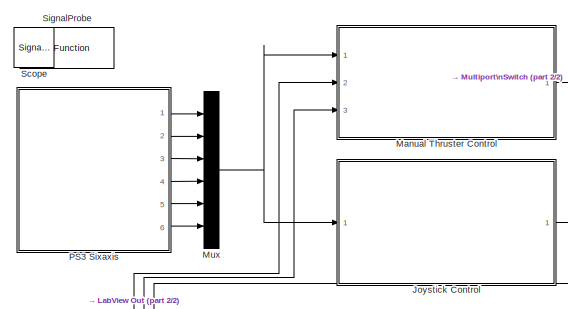
[diagram: root canvas - part 1/2, top left region]
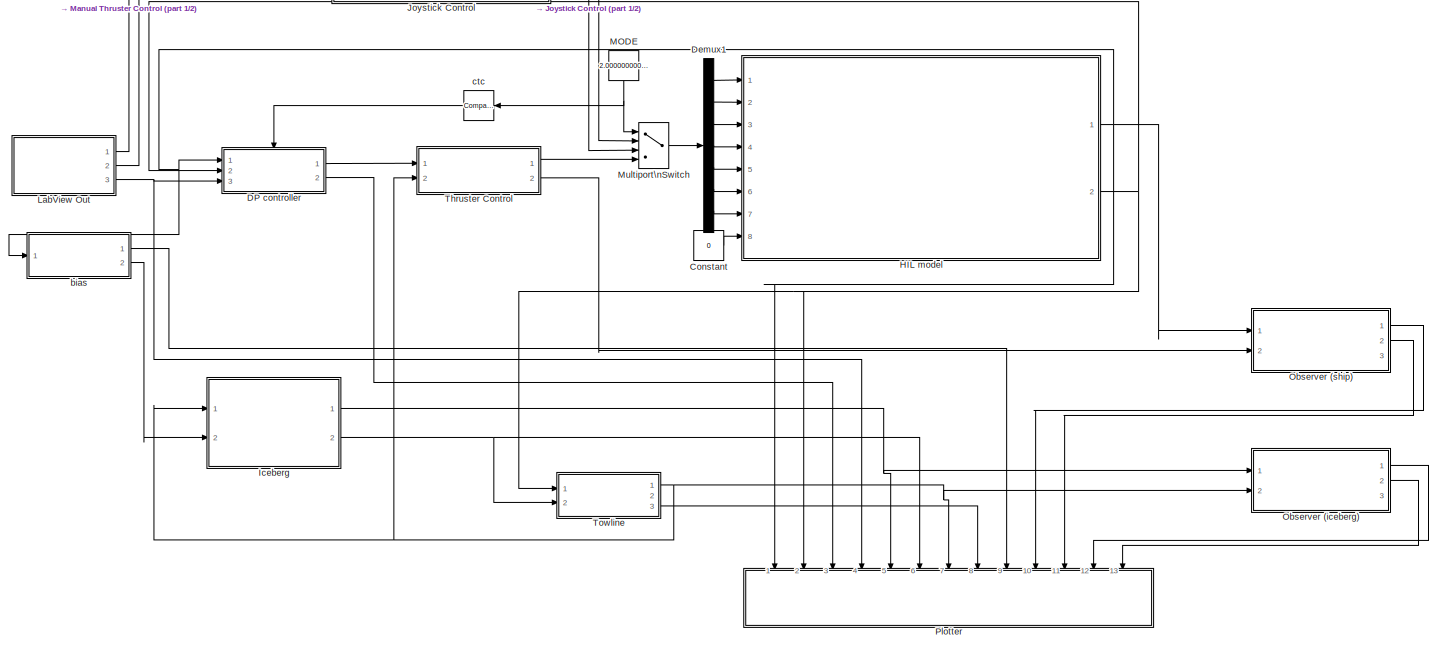
[diagram: root canvas - part 2/2, full width, middle band]
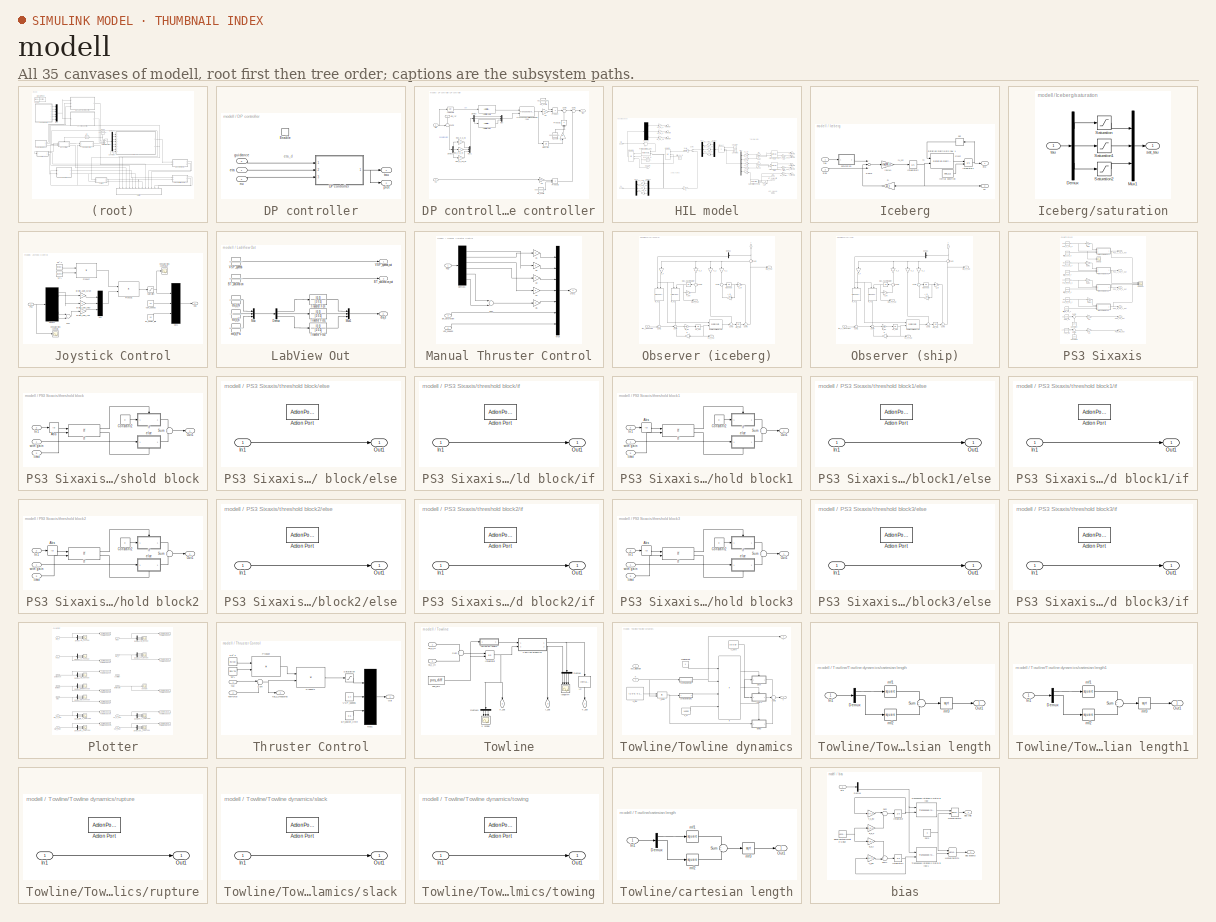
[diagram: thumbnail index - all 35 canvases of the model, root first then tree order]
MODEL modell
KIND model
BLOCK [Constant] Constant
  OutDataType = fixdt(1, 16)
  OutScaling = 2^0
  Value = 0
BLOCK [SubSystem] DP controller
  FunctionWithSeparateData = off
  MaskHideContents = off
  MinAlgLoopOccurrences = off
  Opaque = off
  Ports = [3, 2, 1]
  PropExecContextOutsideSubsystem = off
  RTWSystemCode = Auto
  RequestExecContextInheritance = off
BLOCK [SubSystem] DP controller/DP controller
  AncestorBlock = marine_gnc/Control/Dynamic \nPositioning /DP controller
  FunctionWithSeparateData = off
  MaskCallbackString = ||
  MaskDescription = Nonlinear PID controller for Set-Point Reulation in Surge, Sway and Yaw
  MaskDisplay = disp('Nonlinear PID\\n set-point controller')
  MaskEnableString = on,on,on
  MaskHelp = The nonlinear  PID controller uses the rotation matrix in yaw for proper scaling of the surge, sway and yaw gains as a function of the yaw angle. \nINPUTS: (1) eta_ref, (2) eta, (3) nu. OUPUTS: (1) tau.
  MaskHideContents = off
  MaskIconFrame = on
  MaskIconOpaque = off
  MaskIconRotate = none
  MaskIconUnits = autoscale
  MaskPortRotate = default
  MaskPromptString = Proportional Gain Matrix: Kp|Derivative Gain Matrix: Kd|Integral Gain Matrix: Ki
  MaskStyleString = edit,edit,edit
  MaskTabNameString = ,,
  MaskToolTipString = on,on,on
  MaskTunableValueString = on,on,on
  MaskType = Nonlinear DP Controller
  MaskValueString = (0.1)^2*[25.8000 0  0;  0  33.8000  1.0115;  0  1.0115  2.7600 ]|2*0.8*0.1*[25.8000 0  0;  0  33.8000  1.0115;  0  1.0115  2.7600 ]|(0.1^3/10)*[25.8000 0  0;  0  33.8000  1.0115;  0  1.0115  2.7600 ]
  MaskVarAliasString = ,,
  MaskVariables = Kp=@1;Kd=@2;Ki=@3;
  MaskVisibilityString = on,on,on
  MinAlgLoopOccurrences = off
  Opaque = off
  Ports = [3, 1]
  PropExecContextOutsideSubsystem = off
  RTWSystemCode = Auto
  RequestExecContextInheritance = off
BLOCK [Demux] DP controller/DP controller/Demux
  DisplayOption = bar
  Outputs = 3
  Ports = [1, 3]
BLOCK [Demux] DP controller/DP controller/Demux1
  DisplayOption = bar
  Outputs = 3
  Ports = [1, 3]
BLOCK [Integrator] DP controller/DP controller/Integrator
  Ports = [1, 1]
BLOCK [Gain] DP controller/DP controller/Kd
  Gain = Kd
  Multiplication = Matrix(K*u)
  OutDataType = sfix(16)
  OutScaling = 2^0
  ParameterDataType = sfix(16)
  ParameterScaling = 2^0
BLOCK [Constant] DP controller/DP controller/Kd_scale
  OutDataType = fixdt(1, 16)
  OutScaling = 2^0
  Value = 0.909090909090909
BLOCK [Gain] DP controller/DP controller/Ki
  Gain = Ki
  Multiplication = Matrix(K*u)
  OutDataType = sfix(16)
  OutScaling = 2^0
  ParameterDataType = sfix(16)
  ParameterScaling = 2^0
BLOCK [Constant] DP controller/DP controller/Ki_scale
  OutDataType = fixdt(1, 16)
  OutScaling = 2^0
  Value = 0.000000000000000
BLOCK [Gain] DP controller/DP controller/Kp
  Gain = Kp
  Multiplication = Matrix(K*u)
  OutDataType = sfix(16)
  OutScaling = 2^0
  ParameterDataType = sfix(16)
  ParameterScaling = 2^0
BLOCK [Constant] DP controller/DP controller/Kp_scale
  OutDataType = fixdt(1, 16)
  OutScaling = 2^0
  Value = 0.519480519480519
BLOCK [Mux] DP controller/DP controller/Mux
  DisplayOption = bar
  Inputs = 3
  Ports = [3, 1]
BLOCK [Mux] DP controller/DP controller/Mux1
  DisplayOption = bar
  Inputs = 3
  Ports = [3, 1]
BLOCK [Product] DP controller/DP controller/Product
  InputSameDT = off
  OutDataType = fixdt(1, 16)
  OutDataTypeMode = Inherit via internal rule
  OutDataTypeStr = Inherit: Inherit via internal rule
  OutScaling = 2^0
  Ports = [2, 1]
  SaturateOnIntegerOverflow = off
BLOCK [Product] DP controller/DP controller/Product1
  InputSameDT = off
  OutDataType = fixdt(1, 16)
  OutDataTypeMode = Inherit via internal rule
  OutDataTypeStr = Inherit: Inherit via internal rule
  OutScaling = 2^0
  Ports = [2, 1]
  SaturateOnIntegerOverflow = off
BLOCK [Product] DP controller/DP controller/Product2
  InputSameDT = off
  OutDataType = fixdt(1, 16)
  OutDataTypeMode = Inherit via internal rule
  OutDataTypeStr = Inherit: Inherit via internal rule
  OutScaling = 2^0
  Ports = [2, 1]
  SaturateOnIntegerOverflow = off
BLOCK [Gain] DP controller/DP controller/Reg_e_E_hil
  OutDataType = fixdt(1, 16)
  OutDataTypeMode = Inherit via internal rule
  OutDataTypeStr = Inherit: Inherit via internal rule
  OutScaling = 2^0
  ParamDataTypeStr = Inherit: Inherit via internal rule
  ParameterDataType = fixdt(1, 16)
  ParameterDataTypeMode = Inherit via internal rule
  ParameterScaling = 2^0
  SaturateOnIntegerOverflow = off
BLOCK [Gain] DP controller/DP controller/Reg_e_N_hil
  OutDataType = fixdt(1, 16)
  OutDataTypeMode = Inherit via internal rule
  OutDataTypeStr = Inherit: Inherit via internal rule
  OutScaling = 2^0
  ParamDataTypeStr = Inherit: Inherit via internal rule
  ParameterDataType = fixdt(1, 16)
  ParameterDataTypeMode = Inherit via internal rule
  ParameterScaling = 2^0
  SaturateOnIntegerOverflow = off
BLOCK [Gain] DP controller/DP controller/Reg_e_Psi_hil
  OutDataType = fixdt(1, 16)
  OutDataTypeMode = Inherit via internal rule
  OutDataTypeStr = Inherit: Inherit via internal rule
  OutScaling = 2^0
  ParamDataTypeStr = Inherit: Inherit via internal rule
  ParameterDataType = fixdt(1, 16)
  ParameterDataTypeMode = Inherit via internal rule
  ParameterScaling = 2^0
  SaturateOnIntegerOverflow = off
BLOCK [Sum] DP controller/DP controller/Sum1
  IconShape = round
  Inputs = |+-
  OutDataType = sfix(16)
  OutScaling = 2^0
  Ports = [2, 1]
BLOCK [Sum] DP controller/DP controller/Sum2
  IconShape = round
  Inputs = +-|
  OutDataType = sfix(16)
  OutScaling = 2^0
  Ports = [2, 1]
BLOCK [Sum] DP controller/DP controller/Sum3
  IconShape = round
  Inputs = |++
  OutDataType = sfix(16)
  OutScaling = 2^0
  Ports = [2, 1]
BLOCK [Reference] DP controller/DP controller/Transposed rotation\n matrix in yaw1  REF=marine_gnc/Models/ Kinematics/Transposed rotation\n matrix in yaw  (lib defined in mdl_10d96c221ba8, mdl_45f1105420c6)
  FunctionWithSeparateData = off
  Ports = [2, 1]
  RTWMemSecDataConstants = Inherit from model
  RTWMemSecDataInternal = Inherit from model
  RTWMemSecDataParameters = Inherit from model
  RTWMemSecFuncExecute = Inherit from model
  RTWMemSecFuncInitTerm = Inherit from model
  ShowPortLabels = FromPortIcon
  SourceBlock = marine_gnc/Models/ Kinematics/Transposed rotation\n matrix in yaw
  SystemSampleTime = -1
BLOCK [Reference] DP controller/DP controller/[-inf inf] to [-pi pi]  REF=marine_gnc/Utilities/Math Operations/[-inf inf] to [-pi pi]  (lib defined in mdl_10d96c221ba8, mdl_45f1105420c6)
  FunctionWithSeparateData = off
  Ports = [1, 1]
  RTWMemSecDataConstants = Inherit from model
  RTWMemSecDataInternal = Inherit from model
  RTWMemSecDataParameters = Inherit from model
  RTWMemSecFuncExecute = Inherit from model
  RTWMemSecFuncInitTerm = Inherit from model
  ShowPortLabels = FromPortIcon
  SourceBlock = marine_gnc/Utilities/Math Operations/[-inf inf] to [-pi pi]
  SourceType = [-inf inf] to [-pi pi]
  SystemSampleTime = -1
BLOCK [Reference] DP controller/DP controller/[-inf inf] to [-pi pi]1  REF=marine_gnc/Utilities/Math Operations/[-inf inf] to [-pi pi]  (lib defined in mdl_10d96c221ba8, mdl_45f1105420c6)
  FunctionWithSeparateData = off
  Ports = [1, 1]
  RTWMemSecDataConstants = Inherit from model
  RTWMemSecDataInternal = Inherit from model
  RTWMemSecDataParameters = Inherit from model
  RTWMemSecFuncExecute = Inherit from model
  RTWMemSecFuncInitTerm = Inherit from model
  ShowPortLabels = FromPortIcon
  SourceBlock = marine_gnc/Utilities/Math Operations/[-inf inf] to [-pi pi]
  SourceType = [-inf inf] to [-pi pi]
  SystemSampleTime = -1
BLOCK [Inport] DP controller/DP controller/eta
  IconDisplay = Port number
  OutDataType = sfix(16)
  OutScaling = 2^0
  Port = 2
BLOCK [Inport] DP controller/DP controller/eta_ref
  IconDisplay = Port number
  OutDataType = sfix(16)
  OutScaling = 2^0
BLOCK [Inport] DP controller/DP controller/nu
  IconDisplay = Port number
  OutDataType = sfix(16)
  OutScaling = 2^0
  Port = 3
BLOCK [Outport] DP controller/DP controller/tau
  IconDisplay = Port number
  InitialOutput = 0
  OutDataType = sfix(16)
  OutScaling = 2^0
BLOCK [Fcn] DP controller/DP controller/yaw angle
  Expr = u(3)
BLOCK [EnablePort] DP controller/Enable
  Ports = []
  StatesWhenEnabling = reset
BLOCK [Inport] DP controller/eta
  IconDisplay = Port number
  OutDataType = fixdt(1, 16)
  OutScaling = 2^0
BLOCK [Inport] DP controller/guidance
  IconDisplay = Port number
  OutDataType = fixdt(1, 16)
  OutScaling = 2^0
  Port = 3
BLOCK [Inport] DP controller/nu
  IconDisplay = Port number
  OutDataType = fixdt(1, 16)
  OutScaling = 2^0
  Port = 2
BLOCK [Outport] DP controller/plot
  IconDisplay = Port number
  OutDataType = fixdt(1, 16)
  OutScaling = 2^0
  Port = 2
BLOCK [Outport] DP controller/tau
  IconDisplay = Port number
  OutDataType = fixdt(1, 16)
  OutScaling = 2^0
BLOCK [Demux] Demux1
  DisplayOption = bar
  Outputs = 7
  Ports = [1, 7]
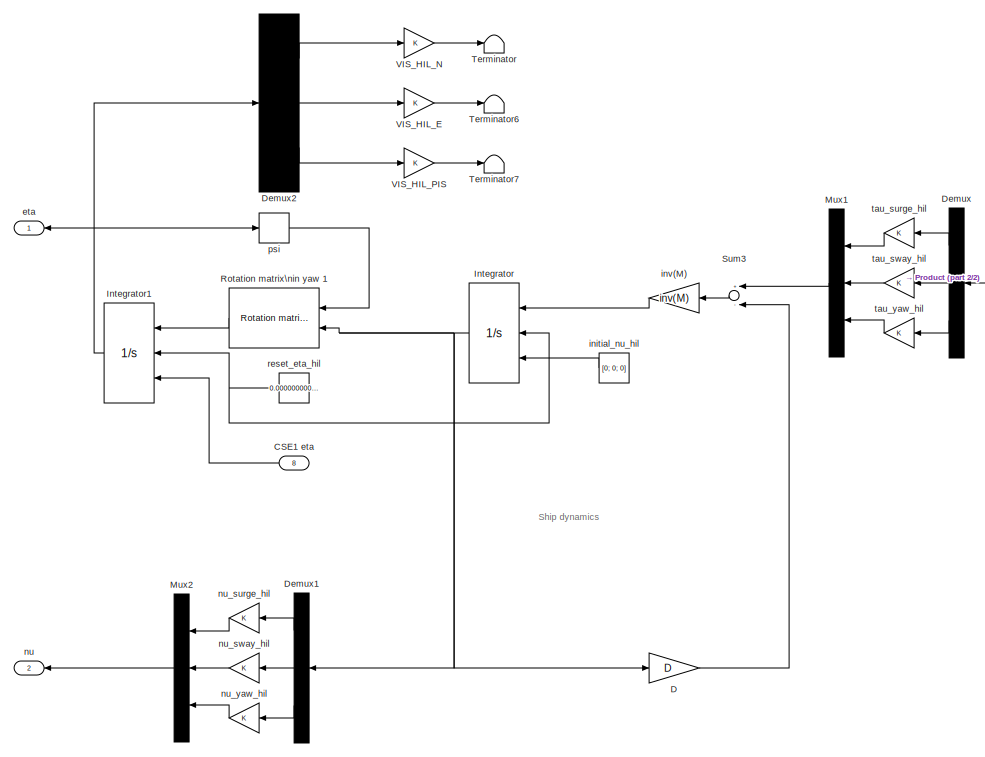
[diagram: HIL model - part 1/2, left side, full height]
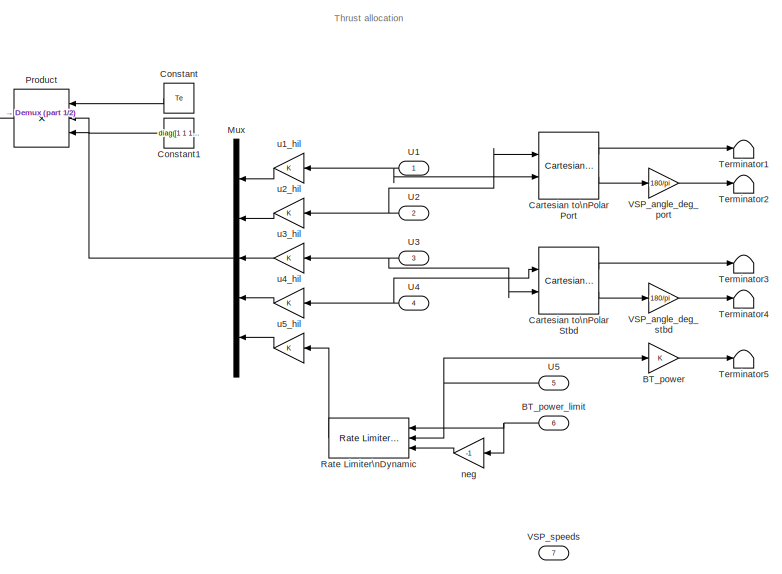
[diagram: HIL model - part 2/2, middle right region]
BLOCK [SubSystem] HIL model
  FunctionWithSeparateData = off
  MaskHideContents = off
  MinAlgLoopOccurrences = off
  Opaque = off
  Ports = [8, 2]
  PropExecContextOutsideSubsystem = off
  RTWSystemCode = Auto
  RequestExecContextInheritance = off
BLOCK [Gain] HIL model/BT_power
  OutDataType = fixdt(1, 16)
  OutDataTypeMode = Inherit via internal rule
  OutDataTypeStr = Inherit: Inherit via internal rule
  OutScaling = 2^0
  ParamDataTypeStr = Inherit: Inherit via internal rule
  ParameterDataType = fixdt(1, 16)
  ParameterDataTypeMode = Inherit via internal rule
  ParameterScaling = 2^0
  SaturateOnIntegerOverflow = off
BLOCK [Inport] HIL model/BT_power_limit
  IconDisplay = Port number
  OutDataType = fixdt(1, 16)
  OutScaling = 2^0
  Port = 6
BLOCK [Inport] HIL model/CSE1 eta
  IconDisplay = Port number
  OutDataType = fixdt(1, 16)
  OutScaling = 2^0
  Port = 8
BLOCK [Reference] HIL model/Cartesian to\nPolar Port  REF=simulink_extras/Transformations/Cartesian to\nPolar
  FunctionWithSeparateData = off
  Ports = [2, 2]
  RTWMemSecDataConstants = Inherit from model
  RTWMemSecDataInternal = Inherit from model
  RTWMemSecDataParameters = Inherit from model
  RTWMemSecFuncExecute = Inherit from model
  RTWMemSecFuncInitTerm = Inherit from model
  ShowPortLabels = FromPortIcon
  SourceBlock = simulink_extras/Transformations/Cartesian to\nPolar
  SourceType = Cart2Polar
  SystemSampleTime = -1
BLOCK [Reference] HIL model/Cartesian to\nPolar Stbd  REF=simulink_extras/Transformations/Cartesian to\nPolar
  FunctionWithSeparateData = off
  Ports = [2, 2]
  RTWMemSecDataConstants = Inherit from model
  RTWMemSecDataInternal = Inherit from model
  RTWMemSecDataParameters = Inherit from model
  RTWMemSecFuncExecute = Inherit from model
  RTWMemSecFuncInitTerm = Inherit from model
  ShowPortLabels = FromPortIcon
  SourceBlock = simulink_extras/Transformations/Cartesian to\nPolar
  SourceType = Cart2Polar
  SystemSampleTime = -1
BLOCK [Constant] HIL model/Constant
  Value = Te
BLOCK [Constant] HIL model/Constant1
  Value = diag([1 1 1 1 1])
BLOCK [Gain] HIL model/D
  Gain = D
  Multiplication = Matrix(K*u)
  OutDataType = sfix(16)
  OutScaling = 2^0
  ParameterDataType = sfix(16)
  ParameterScaling = 2^0
BLOCK [Demux] HIL model/Demux
  DisplayOption = bar
  Outputs = 3
  Ports = [1, 3]
BLOCK [Demux] HIL model/Demux1
  DisplayOption = bar
  Outputs = 3
  Ports = [1, 3]
BLOCK [Demux] HIL model/Demux2
  Outputs = 3
  Ports = [1, 3]
BLOCK [Integrator] HIL model/Integrator
  ExternalReset = level
  InitialConditionSource = external
  Ports = [3, 1]
BLOCK [Integrator] HIL model/Integrator1
  ExternalReset = level
  InitialConditionSource = external
  Ports = [3, 1]
BLOCK [Mux] HIL model/Mux
  DisplayOption = bar
  Inputs = 5
  Ports = [5, 1]
BLOCK [Mux] HIL model/Mux1
  DisplayOption = bar
  Inputs = 3
  Ports = [3, 1]
BLOCK [Mux] HIL model/Mux2
  DisplayOption = bar
  Inputs = 3
  Ports = [3, 1]
BLOCK [Product] HIL model/Product
  InputSameDT = off
  Inputs = 3
  Multiplication = Matrix(*)
  OutDataTypeMode = Inherit via internal rule
  OutDataTypeStr = Inherit: Inherit via internal rule
  Ports = [3, 1]
  SaturateOnIntegerOverflow = off
BLOCK [Reference] HIL model/Rate Limiter\nDynamic  REF=simulink/Discontinuities/Rate Limiter\nDynamic
  FunctionWithSeparateData = off
  Ports = [3, 1]
  RTWMemSecDataConstants = Inherit from model
  RTWMemSecDataInternal = Inherit from model
  RTWMemSecDataParameters = Inherit from model
  RTWMemSecFuncExecute = Inherit from model
  RTWMemSecFuncInitTerm = Inherit from model
  ShowPortLabels = FromPortIcon
  SourceBlock = simulink/Discontinuities/Rate Limiter\nDynamic
  SourceType = Rate Limiter Dynamic
  SystemSampleTime = -1
BLOCK [Reference] HIL model/Rotation matrix\nin yaw 1  REF=marine_gnc/Models/ Kinematics/Rotation matrix\nin yaw   (lib defined in mdl_10d96c221ba8, mdl_45f1105420c6)
  FunctionWithSeparateData = off
  Ports = [2, 1]
  RTWMemSecDataConstants = Inherit from model
  RTWMemSecDataInternal = Inherit from model
  RTWMemSecDataParameters = Inherit from model
  RTWMemSecFuncExecute = Inherit from model
  RTWMemSecFuncInitTerm = Inherit from model
  ShowPortLabels = FromPortIcon
  SourceBlock = marine_gnc/Models/ Kinematics/Rotation matrix\nin yaw
  SystemSampleTime = -1
BLOCK [Sum] HIL model/Sum3
  Inputs = +-
  OutDataType = sfix(16)
  OutScaling = 2^0
  Ports = [2, 1]
BLOCK [Terminator] HIL model/Terminator
BLOCK [Terminator] HIL model/Terminator1
BLOCK [Terminator] HIL model/Terminator2
BLOCK [Terminator] HIL model/Terminator3
BLOCK [Terminator] HIL model/Terminator4
BLOCK [Terminator] HIL model/Terminator5
BLOCK [Terminator] HIL model/Terminator6
BLOCK [Terminator] HIL model/Terminator7
BLOCK [Inport] HIL model/U1
  IconDisplay = Port number
  OutDataType = fixdt(1, 16)
  OutScaling = 2^0
BLOCK [Inport] HIL model/U2
  IconDisplay = Port number
  OutDataType = fixdt(1, 16)
  OutScaling = 2^0
  Port = 2
BLOCK [Inport] HIL model/U3
  IconDisplay = Port number
  OutDataType = fixdt(1, 16)
  OutScaling = 2^0
  Port = 3
BLOCK [Inport] HIL model/U4
  IconDisplay = Port number
  OutDataType = fixdt(1, 16)
  OutScaling = 2^0
  Port = 4
BLOCK [Inport] HIL model/U5
  IconDisplay = Port number
  OutDataType = fixdt(1, 16)
  OutScaling = 2^0
  Port = 5
BLOCK [Gain] HIL model/VIS_HIL_E
  OutDataType = fixdt(1, 16)
  OutDataTypeMode = Inherit via internal rule
  OutDataTypeStr = Inherit: Inherit via internal rule
  OutScaling = 2^0
  ParamDataTypeStr = Inherit: Inherit via internal rule
  ParameterDataType = fixdt(1, 16)
  ParameterDataTypeMode = Inherit via internal rule
  ParameterScaling = 2^0
  SaturateOnIntegerOverflow = off
BLOCK [Gain] HIL model/VIS_HIL_N
  OutDataType = fixdt(1, 16)
  OutDataTypeMode = Inherit via internal rule
  OutDataTypeStr = Inherit: Inherit via internal rule
  OutScaling = 2^0
  ParamDataTypeStr = Inherit: Inherit via internal rule
  ParameterDataType = fixdt(1, 16)
  ParameterDataTypeMode = Inherit via internal rule
  ParameterScaling = 2^0
  SaturateOnIntegerOverflow = off
BLOCK [Gain] HIL model/VIS_HIL_PIS
  OutDataType = fixdt(1, 16)
  OutDataTypeMode = Inherit via internal rule
  OutDataTypeStr = Inherit: Inherit via internal rule
  OutScaling = 2^0
  ParamDataTypeStr = Inherit: Inherit via internal rule
  ParameterDataType = fixdt(1, 16)
  ParameterDataTypeMode = Inherit via internal rule
  ParameterScaling = 2^0
  SaturateOnIntegerOverflow = off
BLOCK [Gain] HIL model/VSP_angle_deg_port
  Gain = 180/pi
  OutDataType = fixdt(1, 16)
  OutDataTypeMode = Inherit via internal rule
  OutDataTypeStr = Inherit: Inherit via internal rule
  OutScaling = 2^0
  ParamDataTypeStr = Inherit: Inherit via internal rule
  ParameterDataType = fixdt(1, 16)
  ParameterDataTypeMode = Inherit via internal rule
  ParameterScaling = 2^0
  SaturateOnIntegerOverflow = off
BLOCK [Gain] HIL model/VSP_angle_deg_stbd
  Gain = 180/pi
  OutDataType = fixdt(1, 16)
  OutDataTypeMode = Inherit via internal rule
  OutDataTypeStr = Inherit: Inherit via internal rule
  OutScaling = 2^0
  ParamDataTypeStr = Inherit: Inherit via internal rule
  ParameterDataType = fixdt(1, 16)
  ParameterDataTypeMode = Inherit via internal rule
  ParameterScaling = 2^0
  SaturateOnIntegerOverflow = off
BLOCK [Inport] HIL model/VSP_speeds
  IconDisplay = Port number
  OutDataType = fixdt(1, 16)
  OutScaling = 2^0
  Port = 7
BLOCK [Outport] HIL model/eta
  IconDisplay = Port number
  OutDataType = sfix(16)
  OutScaling = 2^0
BLOCK [Constant] HIL model/initial_nu_hil
  OutDataType = fixdt(1, 16)
  OutScaling = 2^0
  Value = [0; 0; 0]
BLOCK [Gain] HIL model/inv(M)
  Gain = inv(M)
  Multiplication = Matrix(K*u)
  OutDataType = sfix(16)
  OutScaling = 2^0
  ParameterDataType = sfix(16)
  ParameterScaling = 2^0
BLOCK [Gain] HIL model/neg
  Gain = -1
  OutDataType = fixdt(1, 16)
  OutDataTypeMode = Inherit via internal rule
  OutDataTypeStr = Inherit: Inherit via internal rule
  OutScaling = 2^0
  ParamDataTypeStr = Inherit: Inherit via internal rule
  ParameterDataType = fixdt(1, 16)
  ParameterDataTypeMode = Inherit via internal rule
  ParameterScaling = 2^0
  SaturateOnIntegerOverflow = off
BLOCK [Outport] HIL model/nu
  IconDisplay = Port number
  OutDataType = sfix(16)
  OutScaling = 2^0
  Port = 2
BLOCK [Gain] HIL model/nu_surge_hil
  OutDataType = fixdt(1, 16)
  OutDataTypeMode = Inherit via internal rule
  OutDataTypeStr = Inherit: Inherit via internal rule
  OutScaling = 2^0
  ParamDataTypeStr = Inherit: Inherit via internal rule
  ParameterDataType = fixdt(1, 16)
  ParameterDataTypeMode = Inherit via internal rule
  ParameterScaling = 2^0
  SaturateOnIntegerOverflow = off
BLOCK [Gain] HIL model/nu_sway_hil
  OutDataType = fixdt(1, 16)
  OutDataTypeMode = Inherit via internal rule
  OutDataTypeStr = Inherit: Inherit via internal rule
  OutScaling = 2^0
  ParamDataTypeStr = Inherit: Inherit via internal rule
  ParameterDataType = fixdt(1, 16)
  ParameterDataTypeMode = Inherit via internal rule
  ParameterScaling = 2^0
  SaturateOnIntegerOverflow = off
BLOCK [Gain] HIL model/nu_yaw_hil
  OutDataType = fixdt(1, 16)
  OutDataTypeMode = Inherit via internal rule
  OutDataTypeStr = Inherit: Inherit via internal rule
  OutScaling = 2^0
  ParamDataTypeStr = Inherit: Inherit via internal rule
  ParameterDataType = fixdt(1, 16)
  ParameterDataTypeMode = Inherit via internal rule
  ParameterScaling = 2^0
  SaturateOnIntegerOverflow = off
BLOCK [Selector] HIL model/psi
  IndexOptions = Index vector (dialog)
  Indices = [3]
  InputPortWidth = 3
  OutputSizes = 1
  Ports = [1, 1]
BLOCK [Constant] HIL model/reset_eta_hil
  OutDataType = fixdt(1, 16)
  OutScaling = 2^0
  Value = 0.000000000000000
BLOCK [Gain] HIL model/tau_surge_hil
  OutDataType = fixdt(1, 16)
  OutDataTypeMode = Inherit via internal rule
  OutDataTypeStr = Inherit: Inherit via internal rule
  OutScaling = 2^0
  ParamDataTypeStr = Inherit: Inherit via internal rule
  ParameterDataType = fixdt(1, 16)
  ParameterDataTypeMode = Inherit via internal rule
  ParameterScaling = 2^0
  SaturateOnIntegerOverflow = off
BLOCK [Gain] HIL model/tau_sway_hil
  OutDataType = fixdt(1, 16)
  OutDataTypeMode = Inherit via internal rule
  OutDataTypeStr = Inherit: Inherit via internal rule
  OutScaling = 2^0
  ParamDataTypeStr = Inherit: Inherit via internal rule
  ParameterDataType = fixdt(1, 16)
  ParameterDataTypeMode = Inherit via internal rule
  ParameterScaling = 2^0
  SaturateOnIntegerOverflow = off
BLOCK [Gain] HIL model/tau_yaw_hil
  OutDataType = fixdt(1, 16)
  OutDataTypeMode = Inherit via internal rule
  OutDataTypeStr = Inherit: Inherit via internal rule
  OutScaling = 2^0
  ParamDataTypeStr = Inherit: Inherit via internal rule
  ParameterDataType = fixdt(1, 16)
  ParameterDataTypeMode = Inherit via internal rule
  ParameterScaling = 2^0
  SaturateOnIntegerOverflow = off
BLOCK [Gain] HIL model/u1_hil
  OutDataType = fixdt(1, 16)
  OutDataTypeMode = Inherit via internal rule
  OutDataTypeStr = Inherit: Inherit via internal rule
  OutScaling = 2^0
  ParamDataTypeStr = Inherit: Inherit via internal rule
  ParameterDataType = fixdt(1, 16)
  ParameterDataTypeMode = Inherit via internal rule
  ParameterScaling = 2^0
  SaturateOnIntegerOverflow = off
BLOCK [Gain] HIL model/u2_hil
  OutDataType = fixdt(1, 16)
  OutDataTypeMode = Inherit via internal rule
  OutDataTypeStr = Inherit: Inherit via internal rule
  OutScaling = 2^0
  ParamDataTypeStr = Inherit: Inherit via internal rule
  ParameterDataType = fixdt(1, 16)
  ParameterDataTypeMode = Inherit via internal rule
  ParameterScaling = 2^0
  SaturateOnIntegerOverflow = off
BLOCK [Gain] HIL model/u3_hil
  OutDataType = fixdt(1, 16)
  OutDataTypeMode = Inherit via internal rule
  OutDataTypeStr = Inherit: Inherit via internal rule
  OutScaling = 2^0
  ParamDataTypeStr = Inherit: Inherit via internal rule
  ParameterDataType = fixdt(1, 16)
  ParameterDataTypeMode = Inherit via internal rule
  ParameterScaling = 2^0
  SaturateOnIntegerOverflow = off
BLOCK [Gain] HIL model/u4_hil
  OutDataType = fixdt(1, 16)
  OutDataTypeMode = Inherit via internal rule
  OutDataTypeStr = Inherit: Inherit via internal rule
  OutScaling = 2^0
  ParamDataTypeStr = Inherit: Inherit via internal rule
  ParameterDataType = fixdt(1, 16)
  ParameterDataTypeMode = Inherit via internal rule
  ParameterScaling = 2^0
  SaturateOnIntegerOverflow = off
BLOCK [Gain] HIL model/u5_hil
  OutDataType = fixdt(1, 16)
  OutDataTypeMode = Inherit via internal rule
  OutDataTypeStr = Inherit: Inherit via internal rule
  OutScaling = 2^0
  ParamDataTypeStr = Inherit: Inherit via internal rule
  ParameterDataType = fixdt(1, 16)
  ParameterDataTypeMode = Inherit via internal rule
  ParameterScaling = 2^0
  SaturateOnIntegerOverflow = off
BLOCK [SubSystem] Iceberg
  AncestorBlock = marine_gnc/Examples/Vessels/CyberShipII
  FunctionWithSeparateData = off
  LoadFcn = initCS2
  MaskDisplay = image(imread('figs/cs.jpg'))\ncolor('white'); port_label('output', 1, 'eta')\ncolor('white');port_label('output', 2, 'nu')\ncolor('white'); port_label('input', 1, 'tau')
  MaskHideContents = off
  MaskIconFrame = on
  MaskIconOpaque = on
  MaskIconRotate = none
  MaskIconUnits = autoscale
  MaskPortRotate = default
  MinAlgLoopOccurrences = off
  Opaque = off
  Ports = [2, 2]
  PropExecContextOutsideSubsystem = off
  RTWSystemCode = Auto
  RequestExecContextInheritance = off
BLOCK [Gain] Iceberg/D
  Gain = D_i
  Multiplication = Matrix(K*u)
  OutDataType = sfix(16)
  OutScaling = 2^0
  ParameterDataType = sfix(16)
  ParameterScaling = 2^0
BLOCK [Integrator] Iceberg/Integrator1
  InitialConditionSource = external
  Ports = [2, 1]
BLOCK [Integrator] Iceberg/Integrator2
  Ports = [1, 1]
BLOCK [Reference] Iceberg/Rotation matrix\nin yaw 1  REF=marine_gnc/Models/ Kinematics/Rotation matrix\nin yaw   (lib defined in mdl_10d96c221ba8, mdl_45f1105420c6)
  FunctionWithSeparateData = off
  Ports = [2, 1]
  RTWMemSecDataConstants = Inherit from model
  RTWMemSecDataInternal = Inherit from model
  RTWMemSecDataParameters = Inherit from model
  RTWMemSecFuncExecute = Inherit from model
  RTWMemSecFuncInitTerm = Inherit from model
  ShowPortLabels = FromPortIcon
  SourceBlock = marine_gnc/Models/ Kinematics/Rotation matrix\nin yaw
  SystemSampleTime = -1
BLOCK [Sum] Iceberg/Sum3
  Inputs = +-+
  OutDataType = sfix(16)
  OutScaling = 2^0
  Ports = [3, 1]
BLOCK [Inport] Iceberg/bias
  IconDisplay = Port number
  OutDataType = fixdt(1, 16)
  OutScaling = 2^0
  Port = 2
BLOCK [Outport] Iceberg/eta
  IconDisplay = Port number
  OutDataType = sfix(16)
  OutScaling = 2^0
BLOCK [Constant] Iceberg/initial position
  OutDataType = fixdt(1, 16)
  OutScaling = 2^0
  Value = pos_0_i
BLOCK [Gain] Iceberg/inv(M)
  Gain = inv(M_i)
  Multiplication = Matrix(K*u)
  OutDataType = sfix(16)
  OutScaling = 2^0
  ParameterDataType = sfix(16)
  ParameterScaling = 2^0
BLOCK [Outport] Iceberg/nu
  IconDisplay = Port number
  OutDataType = sfix(16)
  OutScaling = 2^0
  Port = 2
BLOCK [Selector] Iceberg/psi
  IndexOptions = Index vector (dialog)
  Indices = [3]
  InputPortWidth = 3
  OutputSizes = 1
  Ports = [1, 1]
BLOCK [SubSystem] Iceberg/saturation
  FunctionWithSeparateData = off
  MaskHideContents = off
  MinAlgLoopOccurrences = off
  Opaque = off
  Ports = [1, 1]
  PropExecContextOutsideSubsystem = off
  RTWSystemCode = Auto
  RequestExecContextInheritance = off
BLOCK [Demux] Iceberg/saturation/Demux
  Outputs = 3
  Ports = [1, 3]
BLOCK [Mux] Iceberg/saturation/Mux1
  DisplayOption = bar
  Inputs = 3
  Ports = [3, 1]
BLOCK [Saturate] Iceberg/saturation/Saturation
  LowerLimit = -2
  UpperLimit = 2
BLOCK [Saturate] Iceberg/saturation/Saturation1
  LowerLimit = -1.5
  UpperLimit = 1.5
BLOCK [Saturate] Iceberg/saturation/Saturation2
  LowerLimit = -1.5
  UpperLimit = 1.5
BLOCK [Outport] Iceberg/saturation/sat_tau
  IconDisplay = Port number
  OutDataType = sfix(16)
  OutScaling = 2^0
BLOCK [Inport] Iceberg/saturation/tau
  IconDisplay = Port number
  OutDataType = sfix(16)
  OutScaling = 2^0
BLOCK [Inport] Iceberg/tau
  IconDisplay = Port number
  OutDataType = sfix(16)
  OutScaling = 2^0
BLOCK [SubSystem] Joystick Control
  FunctionWithSeparateData = off
  MaskHideContents = off
  MinAlgLoopOccurrences = off
  Opaque = off
  Ports = [1, 1]
  PropExecContextOutsideSubsystem = off
  RTWSystemCode = Auto
  RequestExecContextInheritance = off
BLOCK [Constant] Joystick Control/BT_power_limit
  OutDataType = fixdt(1, 16)
  OutScaling = 2^0
  Value = 0.5
BLOCK [Demux] Joystick Control/Demux1
  Outputs = 6
  Ports = [1, 6]
BLOCK [Constant] Joystick Control/Ke^-1
  OutDataType = fixdt(1, 16)
  OutScaling = 2^0
  Value = inv(Ke)
BLOCK [Mux] Joystick Control/Mux
  DisplayOption = bar
  Inputs = 3
  Ports = [3, 1]
BLOCK [Mux] Joystick Control/Mux1
  DisplayOption = bar
  Inputs = 3
  Ports = [3, 1]
BLOCK [Outport] Joystick Control/Out1
  IconDisplay = Port number
  OutDataType = fixdt(1, 16)
  OutScaling = 2^0
BLOCK [Inport] Joystick Control/PS3
  IconDisplay = Port number
  OutDataType = fixdt(1, 16)
  OutScaling = 2^0
BLOCK [Product] Joystick Control/Product
  InputSameDT = off
  Multiplication = Matrix(*)
  OutDataType = fixdt(1, 16)
  OutDataTypeMode = Inherit via internal rule
  OutDataTypeStr = Inherit: Inherit via internal rule
  OutScaling = 2^0
  Ports = [2, 1]
  SaturateOnIntegerOverflow = off
BLOCK [Product] Joystick Control/Product1
  InputSameDT = off
  Multiplication = Matrix(*)
  OutDataType = fixdt(1, 16)
  OutDataTypeMode = Inherit via internal rule
  OutDataTypeStr = Inherit: Inherit via internal rule
  OutScaling = 2^0
  Ports = [2, 1]
  SaturateOnIntegerOverflow = off
BLOCK [Saturate] Joystick Control/Saturation
  LowerLimit = -1.0
  OutDataType = fixdt(1, 16)
  OutScaling = 2^0
  UpperLimit = 1.0
BLOCK [Sum] Joystick Control/Sum
  InputSameDT = off
  OutDataType = fixdt(1, 16)
  OutDataTypeMode = Inherit via internal rule
  OutDataTypeStr = Inherit: Inherit via internal rule
  OutScaling = 2^0
  Ports = [2, 1]
  SaturateOnIntegerOverflow = off
BLOCK [Constant] Joystick Control/Te^+
  OutDataType = fixdt(1, 16)
  OutScaling = 2^0
  Value = pinv(Te)
BLOCK [Constant] Joystick Control/VSP_speeds
  OutDataType = fixdt(1, 16)
  OutScaling = 2^0
  Value = 0.4
BLOCK [Scope] Joystick Control/debug joystick control IN
  DataFormat = StructureWithTime
  Floating = off
  NumInputPorts = 1
  Ports = [1]
  SampleTime = 0
  SaveName = ScopeData17
  YMax = 1.1
  YMin = -1.1
BLOCK [Scope] Joystick Control/debug joystick control OUT
  DataFormat = StructureWithTime
  Floating = off
  NumInputPorts = 1
  Ports = [1]
  SampleTime = 0
  SaveName = ScopeData16
  YMax = 0.65
  YMin = -0.5
BLOCK [Gain] Joystick Control/joystick_gain_surge
  OutDataType = fixdt(1, 16)
  OutDataTypeMode = Inherit via internal rule
  OutDataTypeStr = Inherit: Inherit via internal rule
  OutScaling = 2^0
  ParamDataTypeStr = Inherit: Inherit via internal rule
  ParameterDataType = fixdt(1, 16)
  ParameterDataTypeMode = Inherit via internal rule
  ParameterScaling = 2^0
  SaturateOnIntegerOverflow = off
BLOCK [Gain] Joystick Control/joystick_gain_sway
  OutDataType = fixdt(1, 16)
  OutDataTypeMode = Inherit via internal rule
  OutDataTypeStr = Inherit: Inherit via internal rule
  OutScaling = 2^0
  ParamDataTypeStr = Inherit: Inherit via internal rule
  ParameterDataType = fixdt(1, 16)
  ParameterDataTypeMode = Inherit via internal rule
  ParameterScaling = 2^0
  SaturateOnIntegerOverflow = off
BLOCK [Gain] Joystick Control/joystick_gain_yaw
  OutDataType = fixdt(1, 16)
  OutDataTypeMode = Inherit via internal rule
  OutDataTypeStr = Inherit: Inherit via internal rule
  OutScaling = 2^0
  ParamDataTypeStr = Inherit: Inherit via internal rule
  ParameterDataType = fixdt(1, 16)
  ParameterDataTypeMode = Inherit via internal rule
  ParameterScaling = 2^0
  SaturateOnIntegerOverflow = off
BLOCK [SubSystem] LabView Out
  FunctionWithSeparateData = off
  MaskHideContents = off
  MinAlgLoopOccurrences = off
  Opaque = off
  Ports = [0, 3]
  PropExecContextOutsideSubsystem = off
  RTWSystemCode = Auto
  RequestExecContextInheritance = off
BLOCK [Constant] LabView Out/BT_saturation
  OutDataType = fixdt(1, 16)
  OutScaling = 2^0
  Value = 0.000000000000000
BLOCK [Outport] LabView Out/BT_saturation_out
  IconDisplay = Port number
  OutDataType = fixdt(1, 16)
  OutScaling = 2^0
  Port = 2
BLOCK [Demux] LabView Out/Demux
  DisplayOption = bar
  Outputs = 3
  Ports = [1, 3]
BLOCK [Mux] LabView Out/Mux
  DisplayOption = bar
  Inputs = 3
  Ports = [3, 1]
BLOCK [Mux] LabView Out/Mux1
  DisplayOption = bar
  Inputs = 3
  Ports = [3, 1]
BLOCK [TransferFcn] LabView Out/Transfer Fcn
  Denominator = [1 0.1]
  Numerator = [0.1]
BLOCK [TransferFcn] LabView Out/Transfer Fcn1
  Denominator = [1 0.1]
  Numerator = [0.1]
BLOCK [TransferFcn] LabView Out/Transfer Fcn2
  Denominator = [1 0.1]
  Numerator = [0.1]
BLOCK [Constant] LabView Out/VSP_speeds
  OutDataType = fixdt(1, 16)
  OutScaling = 2^0
  Value = 0.000000000000000
BLOCK [Outport] LabView Out/VSP_speeds_out
  IconDisplay = Port number
  OutDataType = fixdt(1, 16)
  OutScaling = 2^0
BLOCK [Outport] LabView Out/eta_d
  IconDisplay = Port number
  OutDataType = fixdt(1, 16)
  OutScaling = 2^0
  Port = 3
BLOCK [Constant] LabView Out/eta_d_E
  OutDataType = fixdt(1, 16)
  OutScaling = 2^0
  Value = -1.000000000000000
BLOCK [Constant] LabView Out/eta_d_N
  OutDataType = fixdt(1, 16)
  OutScaling = 2^0
  Value = 2.000000000000000
BLOCK [Constant] LabView Out/eta_d_Psi
  OutDataType = fixdt(1, 16)
  OutScaling = 2^0
  Value = 0.000000000000000
BLOCK [Constant] MODE
  OutDataType = fixdt(1, 16)
  OutScaling = 2^0
  Value = 2.000000000000000
BLOCK [SubSystem] Manual Thruster Control
  FunctionWithSeparateData = off
  MaskHideContents = off
  MinAlgLoopOccurrences = off
  Opaque = off
  Ports = [3, 1]
  PropExecContextOutsideSubsystem = off
  RTWSystemCode = Auto
  RequestExecContextInheritance = off
BLOCK [Inport] Manual Thruster Control/BT_saturation
  IconDisplay = Port number
  OutDataType = fixdt(1, 16)
  OutScaling = 2^0
  Port = 3
BLOCK [Demux] Manual Thruster Control/Demux1
  Outputs = 6
  Ports = [1, 6]
BLOCK [Mux] Manual Thruster Control/Mux
  Inputs = 7
  Ports = [7, 1]
BLOCK [Outport] Manual Thruster Control/Out1
  IconDisplay = Port number
  OutDataType = fixdt(1, 16)
  OutScaling = 2^0
BLOCK [Inport] Manual Thruster Control/PS3
  IconDisplay = Port number
  OutDataType = fixdt(1, 16)
  OutScaling = 2^0
BLOCK [Sum] Manual Thruster Control/Sum
  InputSameDT = off
  OutDataType = fixdt(1, 16)
  OutDataTypeMode = Inherit via internal rule
  OutDataTypeStr = Inherit: Inherit via internal rule
  OutScaling = 2^0
  Ports = [2, 1]
  SaturateOnIntegerOverflow = off
BLOCK [Gain] Manual Thruster Control/U1
  OutDataType = fixdt(1, 16)
  OutDataTypeMode = Inherit via internal rule
  OutDataTypeStr = Inherit: Inherit via internal rule
  OutScaling = 2^0
  ParamDataTypeStr = Inherit: Inherit via internal rule
  ParameterDataType = fixdt(1, 16)
  ParameterDataTypeMode = Inherit via internal rule
  ParameterScaling = 2^0
  SaturateOnIntegerOverflow = off
BLOCK [Gain] Manual Thruster Control/U2
  OutDataType = fixdt(1, 16)
  OutDataTypeMode = Inherit via internal rule
  OutDataTypeStr = Inherit: Inherit via internal rule
  OutScaling = 2^0
  ParamDataTypeStr = Inherit: Inherit via internal rule
  ParameterDataType = fixdt(1, 16)
  ParameterDataTypeMode = Inherit via internal rule
  ParameterScaling = 2^0
  SaturateOnIntegerOverflow = off
BLOCK [Gain] Manual Thruster Control/U3
  OutDataType = fixdt(1, 16)
  OutDataTypeMode = Inherit via internal rule
  OutDataTypeStr = Inherit: Inherit via internal rule
  OutScaling = 2^0
  ParamDataTypeStr = Inherit: Inherit via internal rule
  ParameterDataType = fixdt(1, 16)
  ParameterDataTypeMode = Inherit via internal rule
  ParameterScaling = 2^0
  SaturateOnIntegerOverflow = off
BLOCK [Gain] Manual Thruster Control/U4
  OutDataType = fixdt(1, 16)
  OutDataTypeMode = Inherit via internal rule
  OutDataTypeStr = Inherit: Inherit via internal rule
  OutScaling = 2^0
  ParamDataTypeStr = Inherit: Inherit via internal rule
  ParameterDataType = fixdt(1, 16)
  ParameterDataTypeMode = Inherit via internal rule
  ParameterScaling = 2^0
  SaturateOnIntegerOverflow = off
BLOCK [Gain] Manual Thruster Control/U5
  OutDataType = fixdt(1, 16)
  OutDataTypeMode = Inherit via internal rule
  OutDataTypeStr = Inherit: Inherit via internal rule
  OutScaling = 2^0
  ParamDataTypeStr = Inherit: Inherit via internal rule
  ParameterDataType = fixdt(1, 16)
  ParameterDataTypeMode = Inherit via internal rule
  ParameterScaling = 2^0
  SaturateOnIntegerOverflow = off
BLOCK [Inport] Manual Thruster Control/VSP_speeds
  IconDisplay = Port number
  OutDataType = fixdt(1, 16)
  OutScaling = 2^0
  Port = 2
BLOCK [MultiPortSwitch] Multiport\nSwitch
  InputSameDT = off
  OutDataType = fixdt(1, 16)
  OutScaling = 2^0
  Ports = [4, 1]
  SaturateOnIntegerOverflow = off
  zeroidx = on
BLOCK [Mux] Mux
  Inputs = 6
  Ports = [6, 1]
BLOCK [SubSystem] Observer (iceberg)
  FunctionWithSeparateData = off
  MaskHideContents = off
  MinAlgLoopOccurrences = off
  Opaque = off
  Ports = [2, 3]
  PropExecContextOutsideSubsystem = off
  RTWSystemCode = Auto
  RequestExecContextInheritance = off
BLOCK [Gain] Observer (iceberg)/A_w
  Gain = A_w
  Multiplication = Matrix(K*u)
  OutDataType = fixdt(1, 16)
  OutDataTypeMode = Inherit via internal rule
  OutDataTypeStr = Inherit: Inherit via internal rule
  OutScaling = 2^0
  ParamDataTypeStr = Inherit: Inherit via internal rule
  ParameterDataType = fixdt(1, 16)
  ParameterDataTypeMode = Inherit via internal rule
  ParameterScaling = 2^0
  SaturateOnIntegerOverflow = off
BLOCK [Gain] Observer (iceberg)/C_w
  Gain = C_w
  Multiplication = Matrix(K*u)
  OutDataType = fixdt(1, 16)
  OutDataTypeMode = Inherit via internal rule
  OutDataTypeStr = Inherit: Inherit via internal rule
  OutScaling = 2^0
  ParamDataTypeStr = Inherit: Inherit via internal rule
  ParameterDataType = fixdt(1, 16)
  ParameterDataTypeMode = Inherit via internal rule
  ParameterScaling = 2^0
  SaturateOnIntegerOverflow = off
BLOCK [Gain] Observer (iceberg)/D
  Gain = D_i
  Multiplication = Matrix(K*u)
  OutDataType = fixdt(1, 16)
  OutDataTypeMode = Inherit via internal rule
  OutDataTypeStr = Inherit: Inherit via internal rule
  OutScaling = 2^0
  ParamDataTypeStr = Inherit: Inherit via internal rule
  ParameterDataType = fixdt(1, 16)
  ParameterDataTypeMode = Inherit via internal rule
  ParameterScaling = 2^0
  SaturateOnIntegerOverflow = off
BLOCK [Demux] Observer (iceberg)/Demux
  DisplayOption = bar
  Outputs = 3
  Ports = [1, 3]
BLOCK [Gain] Observer (iceberg)/K_1
  Gain = K_1
  Multiplication = Matrix(K*u)
  OutDataType = fixdt(1, 16)
  OutDataTypeMode = Inherit via internal rule
  OutDataTypeStr = Inherit: Inherit via internal rule
  OutScaling = 2^0
  ParamDataTypeStr = Inherit: Inherit via internal rule
  ParameterDataType = fixdt(1, 16)
  ParameterDataTypeMode = Inherit via internal rule
  ParameterScaling = 2^0
  SaturateOnIntegerOverflow = off
BLOCK [Gain] Observer (iceberg)/K_2
  Gain = K_2
  Multiplication = Matrix(K*u)
  OutDataType = fixdt(1, 16)
  OutDataTypeMode = Inherit via internal rule
  OutDataTypeStr = Inherit: Inherit via internal rule
  OutScaling = 2^0
  ParamDataTypeStr = Inherit: Inherit via internal rule
  ParameterDataType = fixdt(1, 16)
  ParameterDataTypeMode = Inherit via internal rule
  ParameterScaling = 2^0
  SaturateOnIntegerOverflow = off
BLOCK [Gain] Observer (iceberg)/K_3
  Gain = K_3
  Multiplication = Matrix(K*u)
  OutDataType = fixdt(1, 16)
  OutDataTypeMode = Inherit via internal rule
  OutDataTypeStr = Inherit: Inherit via internal rule
  OutScaling = 2^0
  ParamDataTypeStr = Inherit: Inherit via internal rule
  ParameterDataType = fixdt(1, 16)
  ParameterDataTypeMode = Inherit via internal rule
  ParameterScaling = 2^0
  SaturateOnIntegerOverflow = off
BLOCK [Gain] Observer (iceberg)/K_4
  Gain = K_4
  Multiplication = Matrix(K*u)
  OutDataType = fixdt(1, 16)
  OutDataTypeMode = Inherit via internal rule
  OutDataTypeStr = Inherit: Inherit via internal rule
  OutScaling = 2^0
  ParamDataTypeStr = Inherit: Inherit via internal rule
  ParameterDataType = fixdt(1, 16)
  ParameterDataTypeMode = Inherit via internal rule
  ParameterScaling = 2^0
  SaturateOnIntegerOverflow = off
BLOCK [Gain] Observer (iceberg)/M_inv
  Gain = inv(M_i)
  Multiplication = Matrix(K*u)
  OutDataType = fixdt(1, 16)
  OutDataTypeMode = Inherit via internal rule
  OutDataTypeStr = Inherit: Inherit via internal rule
  OutScaling = 2^0
  ParamDataTypeStr = Inherit: Inherit via internal rule
  ParameterDataType = fixdt(1, 16)
  ParameterDataTypeMode = Inherit via internal rule
  ParameterScaling = 2^0
  SaturateOnIntegerOverflow = off
BLOCK [Reference] Observer (iceberg)/R_T1  REF=marine_gnc/Models/ Kinematics/Transposed rotation\n matrix in yaw  (lib defined in mdl_10d96c221ba8, mdl_45f1105420c6)
  FunctionWithSeparateData = off
  Ports = [2, 1]
  RTWMemSecDataConstants = Inherit from model
  RTWMemSecDataInternal = Inherit from model
  RTWMemSecDataParameters = Inherit from model
  RTWMemSecFuncExecute = Inherit from model
  RTWMemSecFuncInitTerm = Inherit from model
  ShowPortLabels = FromPortIcon
  SourceBlock = marine_gnc/Models/ Kinematics/Transposed rotation\n matrix in yaw
  SystemSampleTime = -1
BLOCK [Reference] Observer (iceberg)/R_T2  REF=marine_gnc/Models/ Kinematics/Transposed rotation\n matrix in yaw  (lib defined in mdl_10d96c221ba8, mdl_45f1105420c6)
  FunctionWithSeparateData = off
  Ports = [2, 1]
  RTWMemSecDataConstants = Inherit from model
  RTWMemSecDataInternal = Inherit from model
  RTWMemSecDataParameters = Inherit from model
  RTWMemSecFuncExecute = Inherit from model
  RTWMemSecFuncInitTerm = Inherit from model
  ShowPortLabels = FromPortIcon
  SourceBlock = marine_gnc/Models/ Kinematics/Transposed rotation\n matrix in yaw
  SystemSampleTime = -1
BLOCK [Reference] Observer (iceberg)/Rotation matrix\nin yaw   REF=marine_gnc/Models/ Kinematics/Rotation matrix\nin yaw   (lib defined in mdl_10d96c221ba8, mdl_45f1105420c6)
  FunctionWithSeparateData = off
  Ports = [2, 1]
  RTWMemSecDataConstants = Inherit from model
  RTWMemSecDataInternal = Inherit from model
  RTWMemSecDataParameters = Inherit from model
  RTWMemSecFuncExecute = Inherit from model
  RTWMemSecFuncInitTerm = Inherit from model
  ShowPortLabels = FromPortIcon
  SourceBlock = marine_gnc/Models/ Kinematics/Rotation matrix\nin yaw
  SystemSampleTime = -1
BLOCK [Sum] Observer (iceberg)/Sum
  IconShape = round
  InputSameDT = off
  OutDataType = fixdt(1, 16)
  OutDataTypeMode = Inherit via internal rule
  OutDataTypeStr = Inherit: Inherit via internal rule
  OutScaling = 2^0
  Ports = [2, 1]
  SaturateOnIntegerOverflow = off
BLOCK [Sum] Observer (iceberg)/Sum1
  IconShape = round
  InputSameDT = off
  Inputs = ++|
  OutDataType = fixdt(1, 16)
  OutDataTypeMode = Inherit via internal rule
  OutDataTypeStr = Inherit: Inherit via internal rule
  OutScaling = 2^0
  Ports = [2, 1]
  SaturateOnIntegerOverflow = off
BLOCK [Sum] Observer (iceberg)/Sum2
  IconShape = round
  InputSameDT = off
  Inputs = +-
  OutDataType = fixdt(1, 16)
  OutDataTypeMode = Inherit via internal rule
  OutDataTypeStr = Inherit: Inherit via internal rule
  OutScaling = 2^0
  Ports = [2, 1]
  SaturateOnIntegerOverflow = off
BLOCK [Sum] Observer (iceberg)/Sum3
  IconShape = round
  InputSameDT = off
  Inputs = ++|
  OutDataType = fixdt(1, 16)
  OutDataTypeMode = Inherit via internal rule
  OutDataTypeStr = Inherit: Inherit via internal rule
  OutScaling = 2^0
  Ports = [2, 1]
  SaturateOnIntegerOverflow = off
BLOCK [Sum] Observer (iceberg)/Sum4
  IconShape = round
  InputSameDT = off
  Inputs = ++-
  OutDataType = fixdt(1, 16)
  OutDataTypeMode = Inherit via internal rule
  OutDataTypeStr = Inherit: Inherit via internal rule
  OutScaling = 2^0
  Ports = [3, 1]
  SaturateOnIntegerOverflow = off
BLOCK [Sum] Observer (iceberg)/Sum5
  IconShape = round
  InputSameDT = off
  OutDataType = fixdt(1, 16)
  OutDataTypeMode = Inherit via internal rule
  OutDataTypeStr = Inherit: Inherit via internal rule
  OutScaling = 2^0
  Ports = [2, 1]
  SaturateOnIntegerOverflow = off
BLOCK [Sum] Observer (iceberg)/Sum6
  IconShape = round
  InputSameDT = off
  Inputs = ++|
  OutDataType = fixdt(1, 16)
  OutDataTypeMode = Inherit via internal rule
  OutDataTypeStr = Inherit: Inherit via internal rule
  OutScaling = 2^0
  Ports = [2, 1]
  SaturateOnIntegerOverflow = off
BLOCK [Gain] Observer (iceberg)/T_inv
  Gain = T_s_inv
  Multiplication = Matrix(K*u)
  OutDataType = fixdt(1, 16)
  OutDataTypeMode = Inherit via internal rule
  OutDataTypeStr = Inherit: Inherit via internal rule
  OutScaling = 2^0
  ParamDataTypeStr = Inherit: Inherit via internal rule
  ParameterDataType = fixdt(1, 16)
  ParameterDataTypeMode = Inherit via internal rule
  ParameterScaling = 2^0
  SaturateOnIntegerOverflow = off
BLOCK [Integrator] Observer (iceberg)/bias_hat_integrator
  Ports = [1, 1]
BLOCK [Outport] Observer (iceberg)/bias_i_hat
  IconDisplay = Port number
  OutDataType = fixdt(1, 16)
  OutScaling = 2^0
  Port = 3
BLOCK [Integrator] Observer (iceberg)/eta_hat
  Ports = [1, 1]
BLOCK [Outport] Observer (iceberg)/eta_i_hat
  IconDisplay = Port number
  OutDataType = fixdt(1, 16)
  OutScaling = 2^0
BLOCK [Integrator] Observer (iceberg)/nu_hat
  Ports = [1, 1]
BLOCK [Outport] Observer (iceberg)/nu_i_hat
  IconDisplay = Port number
  OutDataType = fixdt(1, 16)
  OutScaling = 2^0
  Port = 2
BLOCK [Inport] Observer (iceberg)/tau_i_measured
  IconDisplay = Port number
  OutDataType = fixdt(1, 16)
  OutScaling = 2^0
  Port = 2
BLOCK [Integrator] Observer (iceberg)/wave hat
  Ports = [1, 1]
BLOCK [Inport] Observer (iceberg)/y
  IconDisplay = Port number
  OutDataType = fixdt(1, 16)
  OutScaling = 2^0
BLOCK [SubSystem] Observer (ship)
  FunctionWithSeparateData = off
  MaskHideContents = off
  MinAlgLoopOccurrences = off
  Opaque = off
  Ports = [2, 3]
  PropExecContextOutsideSubsystem = off
  RTWSystemCode = Auto
  RequestExecContextInheritance = off
BLOCK [Gain] Observer (ship)/A_w
  Gain = A_w
  Multiplication = Matrix(K*u)
  OutDataType = fixdt(1, 16)
  OutDataTypeMode = Inherit via internal rule
  OutDataTypeStr = Inherit: Inherit via internal rule
  OutScaling = 2^0
  ParamDataTypeStr = Inherit: Inherit via internal rule
  ParameterDataType = fixdt(1, 16)
  ParameterDataTypeMode = Inherit via internal rule
  ParameterScaling = 2^0
  SaturateOnIntegerOverflow = off
BLOCK [Gain] Observer (ship)/C_w
  Gain = C_w
  Multiplication = Matrix(K*u)
  OutDataType = fixdt(1, 16)
  OutDataTypeMode = Inherit via internal rule
  OutDataTypeStr = Inherit: Inherit via internal rule
  OutScaling = 2^0
  ParamDataTypeStr = Inherit: Inherit via internal rule
  ParameterDataType = fixdt(1, 16)
  ParameterDataTypeMode = Inherit via internal rule
  ParameterScaling = 2^0
  SaturateOnIntegerOverflow = off
BLOCK [Gain] Observer (ship)/D
  Gain = D
  Multiplication = Matrix(K*u)
  OutDataType = fixdt(1, 16)
  OutDataTypeMode = Inherit via internal rule
  OutDataTypeStr = Inherit: Inherit via internal rule
  OutScaling = 2^0
  ParamDataTypeStr = Inherit: Inherit via internal rule
  ParameterDataType = fixdt(1, 16)
  ParameterDataTypeMode = Inherit via internal rule
  ParameterScaling = 2^0
  SaturateOnIntegerOverflow = off
BLOCK [Demux] Observer (ship)/Demux
  DisplayOption = bar
  Outputs = 3
  Ports = [1, 3]
BLOCK [Gain] Observer (ship)/K_1
  Gain = K_1
  Multiplication = Matrix(K*u)
  OutDataType = fixdt(1, 16)
  OutDataTypeMode = Inherit via internal rule
  OutDataTypeStr = Inherit: Inherit via internal rule
  OutScaling = 2^0
  ParamDataTypeStr = Inherit: Inherit via internal rule
  ParameterDataType = fixdt(1, 16)
  ParameterDataTypeMode = Inherit via internal rule
  ParameterScaling = 2^0
  SaturateOnIntegerOverflow = off
BLOCK [Gain] Observer (ship)/K_2
  Gain = K_2
  Multiplication = Matrix(K*u)
  OutDataType = fixdt(1, 16)
  OutDataTypeMode = Inherit via internal rule
  OutDataTypeStr = Inherit: Inherit via internal rule
  OutScaling = 2^0
  ParamDataTypeStr = Inherit: Inherit via internal rule
  ParameterDataType = fixdt(1, 16)
  ParameterDataTypeMode = Inherit via internal rule
  ParameterScaling = 2^0
  SaturateOnIntegerOverflow = off
BLOCK [Gain] Observer (ship)/K_3
  Gain = K_3
  Multiplication = Matrix(K*u)
  OutDataType = fixdt(1, 16)
  OutDataTypeMode = Inherit via internal rule
  OutDataTypeStr = Inherit: Inherit via internal rule
  OutScaling = 2^0
  ParamDataTypeStr = Inherit: Inherit via internal rule
  ParameterDataType = fixdt(1, 16)
  ParameterDataTypeMode = Inherit via internal rule
  ParameterScaling = 2^0
  SaturateOnIntegerOverflow = off
BLOCK [Gain] Observer (ship)/K_4
  Gain = K_4
  Multiplication = Matrix(K*u)
  OutDataType = fixdt(1, 16)
  OutDataTypeMode = Inherit via internal rule
  OutDataTypeStr = Inherit: Inherit via internal rule
  OutScaling = 2^0
  ParamDataTypeStr = Inherit: Inherit via internal rule
  ParameterDataType = fixdt(1, 16)
  ParameterDataTypeMode = Inherit via internal rule
  ParameterScaling = 2^0
  SaturateOnIntegerOverflow = off
BLOCK [Gain] Observer (ship)/M_inv
  Gain = inv(M)
  Multiplication = Matrix(K*u)
  OutDataType = fixdt(1, 16)
  OutDataTypeMode = Inherit via internal rule
  OutDataTypeStr = Inherit: Inherit via internal rule
  OutScaling = 2^0
  ParamDataTypeStr = Inherit: Inherit via internal rule
  ParameterDataType = fixdt(1, 16)
  ParameterDataTypeMode = Inherit via internal rule
  ParameterScaling = 2^0
  SaturateOnIntegerOverflow = off
BLOCK [Reference] Observer (ship)/R_T1  REF=marine_gnc/Models/ Kinematics/Transposed rotation\n matrix in yaw  (lib defined in mdl_10d96c221ba8, mdl_45f1105420c6)
  FunctionWithSeparateData = off
  Ports = [2, 1]
  RTWMemSecDataConstants = Inherit from model
  RTWMemSecDataInternal = Inherit from model
  RTWMemSecDataParameters = Inherit from model
  RTWMemSecFuncExecute = Inherit from model
  RTWMemSecFuncInitTerm = Inherit from model
  ShowPortLabels = FromPortIcon
  SourceBlock = marine_gnc/Models/ Kinematics/Transposed rotation\n matrix in yaw
  SystemSampleTime = -1
BLOCK [Reference] Observer (ship)/R_T2  REF=marine_gnc/Models/ Kinematics/Transposed rotation\n matrix in yaw  (lib defined in mdl_10d96c221ba8, mdl_45f1105420c6)
  FunctionWithSeparateData = off
  Ports = [2, 1]
  RTWMemSecDataConstants = Inherit from model
  RTWMemSecDataInternal = Inherit from model
  RTWMemSecDataParameters = Inherit from model
  RTWMemSecFuncExecute = Inherit from model
  RTWMemSecFuncInitTerm = Inherit from model
  ShowPortLabels = FromPortIcon
  SourceBlock = marine_gnc/Models/ Kinematics/Transposed rotation\n matrix in yaw
  SystemSampleTime = -1
BLOCK [Reference] Observer (ship)/Rotation matrix\nin yaw   REF=marine_gnc/Models/ Kinematics/Rotation matrix\nin yaw   (lib defined in mdl_10d96c221ba8, mdl_45f1105420c6)
  FunctionWithSeparateData = off
  Ports = [2, 1]
  RTWMemSecDataConstants = Inherit from model
  RTWMemSecDataInternal = Inherit from model
  RTWMemSecDataParameters = Inherit from model
  RTWMemSecFuncExecute = Inherit from model
  RTWMemSecFuncInitTerm = Inherit from model
  ShowPortLabels = FromPortIcon
  SourceBlock = marine_gnc/Models/ Kinematics/Rotation matrix\nin yaw
  SystemSampleTime = -1
BLOCK [Sum] Observer (ship)/Sum
  IconShape = round
  InputSameDT = off
  OutDataType = fixdt(1, 16)
  OutDataTypeMode = Inherit via internal rule
  OutDataTypeStr = Inherit: Inherit via internal rule
  OutScaling = 2^0
  Ports = [2, 1]
  SaturateOnIntegerOverflow = off
BLOCK [Sum] Observer (ship)/Sum1
  IconShape = round
  InputSameDT = off
  Inputs = ++|
  OutDataType = fixdt(1, 16)
  OutDataTypeMode = Inherit via internal rule
  OutDataTypeStr = Inherit: Inherit via internal rule
  OutScaling = 2^0
  Ports = [2, 1]
  SaturateOnIntegerOverflow = off
BLOCK [Sum] Observer (ship)/Sum2
  IconShape = round
  InputSameDT = off
  Inputs = +-
  OutDataType = fixdt(1, 16)
  OutDataTypeMode = Inherit via internal rule
  OutDataTypeStr = Inherit: Inherit via internal rule
  OutScaling = 2^0
  Ports = [2, 1]
  SaturateOnIntegerOverflow = off
BLOCK [Sum] Observer (ship)/Sum3
  IconShape = round
  InputSameDT = off
  Inputs = ++|
  OutDataType = fixdt(1, 16)
  OutDataTypeMode = Inherit via internal rule
  OutDataTypeStr = Inherit: Inherit via internal rule
  OutScaling = 2^0
  Ports = [2, 1]
  SaturateOnIntegerOverflow = off
BLOCK [Sum] Observer (ship)/Sum4
  IconShape = round
  InputSameDT = off
  Inputs = ++-
  OutDataType = fixdt(1, 16)
  OutDataTypeMode = Inherit via internal rule
  OutDataTypeStr = Inherit: Inherit via internal rule
  OutScaling = 2^0
  Ports = [3, 1]
  SaturateOnIntegerOverflow = off
BLOCK [Sum] Observer (ship)/Sum5
  IconShape = round
  InputSameDT = off
  OutDataType = fixdt(1, 16)
  OutDataTypeMode = Inherit via internal rule
  OutDataTypeStr = Inherit: Inherit via internal rule
  OutScaling = 2^0
  Ports = [2, 1]
  SaturateOnIntegerOverflow = off
BLOCK [Sum] Observer (ship)/Sum6
  IconShape = round
  InputSameDT = off
  Inputs = ++|
  OutDataType = fixdt(1, 16)
  OutDataTypeMode = Inherit via internal rule
  OutDataTypeStr = Inherit: Inherit via internal rule
  OutScaling = 2^0
  Ports = [2, 1]
  SaturateOnIntegerOverflow = off
BLOCK [Gain] Observer (ship)/T_inv
  Gain = T_s_inv
  Multiplication = Matrix(K*u)
  OutDataType = fixdt(1, 16)
  OutDataTypeMode = Inherit via internal rule
  OutDataTypeStr = Inherit: Inherit via internal rule
  OutScaling = 2^0
  ParamDataTypeStr = Inherit: Inherit via internal rule
  ParameterDataType = fixdt(1, 16)
  ParameterDataTypeMode = Inherit via internal rule
  ParameterScaling = 2^0
  SaturateOnIntegerOverflow = off
BLOCK [Integrator] Observer (ship)/bias_hat_integrator
  Ports = [1, 1]
BLOCK [Outport] Observer (ship)/bias_s_hat
  IconDisplay = Port number
  OutDataType = fixdt(1, 16)
  OutScaling = 2^0
  Port = 3
BLOCK [Integrator] Observer (ship)/eta_hat
  Ports = [1, 1]
BLOCK [Outport] Observer (ship)/eta_s_hat
  IconDisplay = Port number
  OutDataType = fixdt(1, 16)
  OutScaling = 2^0
BLOCK [Integrator] Observer (ship)/nu_hat
  Ports = [1, 1]
BLOCK [Outport] Observer (ship)/nu_s_hat
  IconDisplay = Port number
  OutDataType = fixdt(1, 16)
  OutScaling = 2^0
  Port = 2
BLOCK [Inport] Observer (ship)/tau_s_measured
  IconDisplay = Port number
  OutDataType = fixdt(1, 16)
  OutScaling = 2^0
  Port = 2
BLOCK [Integrator] Observer (ship)/wave hat
  Ports = [1, 1]
BLOCK [Inport] Observer (ship)/y
  IconDisplay = Port number
  OutDataType = fixdt(1, 16)
  OutScaling = 2^0
BLOCK [SubSystem] PS3 Sixaxis
  FunctionWithSeparateData = off
  MaskHideContents = off
  MinAlgLoopOccurrences = off
  Opaque = off
  Ports = [0, 6]
  PropExecContextOutsideSubsystem = off
  RTWSystemCode = Auto
  RequestExecContextInheritance = off
BLOCK [Constant] PS3 Sixaxis/Constant
  OutDataType = fixdt(1, 16)
  OutScaling = 2^0
  Value = -179
BLOCK [Constant] PS3 Sixaxis/Constant1
  OutDataType = fixdt(1, 16)
  OutScaling = 2^0
  Value = -179
BLOCK [Gain] PS3 Sixaxis/Gain
  Gain = 1/32676
  OutDataType = fixdt(1, 16)
  OutDataTypeMode = Inherit via internal rule
  OutDataTypeStr = Inherit: Inherit via internal rule
  OutScaling = 2^0
  ParamDataTypeStr = Inherit: Inherit via internal rule
  ParameterDataType = fixdt(1, 16)
  ParameterDataTypeMode = Inherit via internal rule
  ParameterScaling = 2^0
  SaturateOnIntegerOverflow = off
BLOCK [Gain] PS3 Sixaxis/Gain1
  Gain = 1/32676
  OutDataType = fixdt(1, 16)
  OutDataTypeMode = Inherit via internal rule
  OutDataTypeStr = Inherit: Inherit via internal rule
  OutScaling = 2^0
  ParamDataTypeStr = Inherit: Inherit via internal rule
  ParameterDataType = fixdt(1, 16)
  ParameterDataTypeMode = Inherit via internal rule
  ParameterScaling = 2^0
  SaturateOnIntegerOverflow = off
BLOCK [Gain] PS3 Sixaxis/Gain2
  Gain = 1/32676
  OutDataType = fixdt(1, 16)
  OutDataTypeMode = Inherit via internal rule
  OutDataTypeStr = Inherit: Inherit via internal rule
  OutScaling = 2^0
  ParamDataTypeStr = Inherit: Inherit via internal rule
  ParameterDataType = fixdt(1, 16)
  ParameterDataTypeMode = Inherit via internal rule
  ParameterScaling = 2^0
  SaturateOnIntegerOverflow = off
BLOCK [Gain] PS3 Sixaxis/Gain3
  Gain = 1/32676
  OutDataType = fixdt(1, 16)
  OutDataTypeMode = Inherit via internal rule
  OutDataTypeStr = Inherit: Inherit via internal rule
  OutScaling = 2^0
  ParamDataTypeStr = Inherit: Inherit via internal rule
  ParameterDataType = fixdt(1, 16)
  ParameterDataTypeMode = Inherit via internal rule
  ParameterScaling = 2^0
  SaturateOnIntegerOverflow = off
BLOCK [Constant] PS3 Sixaxis/PS3_L2
  OutDataType = fixdt(1, 16)
  OutScaling = 2^0
  Value = -1.000000000000000
BLOCK [Outport] PS3 Sixaxis/PS3_L2_out
  IconDisplay = Port number
  OutDataType = fixdt(1, 16)
  OutScaling = 2^0
  Port = 5
BLOCK [Constant] PS3 Sixaxis/PS3_L_JS_X
  OutDataType = fixdt(1, 16)
  OutScaling = 2^0
  Value = 3229.000000000000000
BLOCK [Outport] PS3 Sixaxis/PS3_L_JS_X_out
  IconDisplay = Port number
  OutDataType = fixdt(1, 16)
  OutScaling = 2^0
BLOCK [Constant] PS3 Sixaxis/PS3_L_JS_Y
  OutDataType = fixdt(1, 16)
  OutScaling = 2^0
  Value = -3229.000000000000000
BLOCK [Outport] PS3 Sixaxis/PS3_L_JS_Y_out
  IconDisplay = Port number
  OutDataType = fixdt(1, 16)
  OutScaling = 2^0
  Port = 2
BLOCK [Constant] PS3 Sixaxis/PS3_R2
  OutDataType = fixdt(1, 16)
  OutScaling = 2^0
  Value = 179.000000000000000
BLOCK [Outport] PS3 Sixaxis/PS3_R2_out
  IconDisplay = Port number
  OutDataType = fixdt(1, 16)
  OutScaling = 2^0
  Port = 6
BLOCK [Constant] PS3 Sixaxis/PS3_R_JS_X
  OutDataType = fixdt(1, 16)
  OutScaling = 2^0
  Value = 3229.000000000000000
BLOCK [Outport] PS3 Sixaxis/PS3_R_JS_X_out
  IconDisplay = Port number
  OutDataType = fixdt(1, 16)
  OutScaling = 2^0
  Port = 3
BLOCK [Constant] PS3 Sixaxis/PS3_R_JS_Y
  OutDataType = fixdt(1, 16)
  OutScaling = 2^0
  Value = -3229.000000000000000
BLOCK [Outport] PS3 Sixaxis/PS3_R_JS_Y_out
  IconDisplay = Port number
  OutDataType = fixdt(1, 16)
  OutScaling = 2^0
  Port = 4
BLOCK [Sum] PS3 Sixaxis/Sum3
  IconShape = round
  InputSameDT = off
  Inputs = |++
  OutDataType = fixdt(1, 16)
  OutDataTypeMode = Inherit via internal rule
  OutDataTypeStr = Inherit: Inherit via internal rule
  OutScaling = 2^0
  Ports = [2, 1]
  SaturateOnIntegerOverflow = off
BLOCK [Sum] PS3 Sixaxis/Sum4
  IconShape = round
  InputSameDT = off
  Inputs = |++
  OutDataType = fixdt(1, 16)
  OutDataTypeMode = Inherit via internal rule
  OutDataTypeStr = Inherit: Inherit via internal rule
  OutScaling = 2^0
  Ports = [2, 1]
  SaturateOnIntegerOverflow = off
BLOCK [Scope] PS3 Sixaxis/debug
  DataFormat = StructureWithTime
  Floating = off
  NumInputPorts = 1
  Ports = [1]
  SampleTime = 0
  SaveName = ScopeData9
  YMax = 3513
  YMin = 3513
BLOCK [Scope] PS3 Sixaxis/debug1
  DataFormat = StructureWithTime
  Floating = off
  NumInputPorts = 4
  Ports = [4]
  SampleTime = 0
  SaveName = ScopeData10
  YMax = 1~1~1~1
  YMin = -1~-1~-1~-1
BLOCK [Gain] PS3 Sixaxis/g1
  Gain = 1/179
  OutDataType = fixdt(1, 16)
  OutDataTypeMode = Inherit via internal rule
  OutDataTypeStr = Inherit: Inherit via internal rule
  OutScaling = 2^0
  ParamDataTypeStr = Inherit: Inherit via internal rule
  ParameterDataType = fixdt(1, 16)
  ParameterDataTypeMode = Inherit via internal rule
  ParameterScaling = 2^0
  SaturateOnIntegerOverflow = off
BLOCK [Gain] PS3 Sixaxis/g2
  Gain = -1/179
  OutDataType = fixdt(1, 16)
  OutDataTypeMode = Inherit via internal rule
  OutDataTypeStr = Inherit: Inherit via internal rule
  OutScaling = 2^0
  ParamDataTypeStr = Inherit: Inherit via internal rule
  ParameterDataType = fixdt(1, 16)
  ParameterDataTypeMode = Inherit via internal rule
  ParameterScaling = 2^0
  SaturateOnIntegerOverflow = off
BLOCK [Constant] PS3 Sixaxis/limit_L_JS_X
  OutDataType = fixdt(1, 16)
  OutScaling = 2^0
  Value = 10000
BLOCK [Constant] PS3 Sixaxis/limit_L_JS_Y
  OutDataType = fixdt(1, 16)
  OutScaling = 2^0
  Value = 10000
BLOCK [Constant] PS3 Sixaxis/limit_R_JS_X
  OutDataType = fixdt(1, 16)
  OutScaling = 2^0
  Value = 10000
BLOCK [Constant] PS3 Sixaxis/limit_R_JS_Y
  OutDataType = fixdt(1, 16)
  OutScaling = 2^0
  Value = 10000
BLOCK [SubSystem] PS3 Sixaxis/threshold block
  FunctionWithSeparateData = off
  MaskHideContents = off
  MinAlgLoopOccurrences = off
  Opaque = off
  Ports = [3, 1]
  PropExecContextOutsideSubsystem = off
  RTWSystemCode = Auto
  RequestExecContextInheritance = off
BLOCK [Abs] PS3 Sixaxis/threshold block/Abs
  OutDataType = fixdt(1, 16)
  OutScaling = 2^0
  SaturateOnIntegerOverflow = off
BLOCK [Constant] PS3 Sixaxis/threshold block/Constant2
  OutDataType = fixdt(1, 16)
  OutScaling = 2^0
  Value = 0
BLOCK [If] PS3 Sixaxis/threshold block/If
  IfExpression = u1 < u2
  NumInputs = 2
  Ports = [2, 2]
BLOCK [Inport] PS3 Sixaxis/threshold block/In1
  IconDisplay = Port number
  OutDataType = fixdt(1, 16)
  OutScaling = 2^0
  Port = 2
BLOCK [Outport] PS3 Sixaxis/threshold block/Out1
  IconDisplay = Port number
  OutDataType = fixdt(1, 16)
  OutScaling = 2^0
BLOCK [Sum] PS3 Sixaxis/threshold block/Sum
  IconShape = round
  InputSameDT = off
  OutDataType = fixdt(1, 16)
  OutDataTypeMode = Inherit via internal rule
  OutDataTypeStr = Inherit: Inherit via internal rule
  OutScaling = 2^0
  Ports = [2, 1]
  SaturateOnIntegerOverflow = off
BLOCK [SubSystem] PS3 Sixaxis/threshold block/else
  FunctionWithSeparateData = off
  MaskHideContents = off
  MinAlgLoopOccurrences = off
  Opaque = off
  Ports = [1, 1, 0, 0, 0, 0, 0, 1]
  PropExecContextOutsideSubsystem = off
  RTWSystemCode = Auto
  RequestExecContextInheritance = off
  TreatAsAtomicUnit = on
BLOCK [ActionPort] PS3 Sixaxis/threshold block/else/Action Port
  ActionType = else
BLOCK [Inport] PS3 Sixaxis/threshold block/else/In1
  IconDisplay = Port number
  OutDataType = fixdt(1, 16)
  OutScaling = 2^0
BLOCK [Outport] PS3 Sixaxis/threshold block/else/Out1
  IconDisplay = Port number
  OutDataType = fixdt(1, 16)
  OutScaling = 2^0
BLOCK [SubSystem] PS3 Sixaxis/threshold block/if
  FunctionWithSeparateData = off
  MaskHideContents = off
  MinAlgLoopOccurrences = off
  Opaque = off
  Ports = [1, 1, 0, 0, 0, 0, 0, 1]
  PropExecContextOutsideSubsystem = off
  RTWSystemCode = Auto
  RequestExecContextInheritance = off
  TreatAsAtomicUnit = on
BLOCK [ActionPort] PS3 Sixaxis/threshold block/if/Action Port
  ActionType = then
BLOCK [Inport] PS3 Sixaxis/threshold block/if/In1
  IconDisplay = Port number
  OutDataType = fixdt(1, 16)
  OutScaling = 2^0
BLOCK [Outport] PS3 Sixaxis/threshold block/if/Out1
  IconDisplay = Port number
  OutDataType = fixdt(1, 16)
  OutScaling = 2^0
BLOCK [Inport] PS3 Sixaxis/threshold block/limit
  IconDisplay = Port number
  OutDataType = fixdt(1, 16)
  OutScaling = 2^0
  Port = 3
BLOCK [Inport] PS3 Sixaxis/threshold block/with gain
  IconDisplay = Port number
  OutDataType = fixdt(1, 16)
  OutScaling = 2^0
BLOCK [SubSystem] PS3 Sixaxis/threshold block1
  FunctionWithSeparateData = off
  MaskHideContents = off
  MinAlgLoopOccurrences = off
  Opaque = off
  Ports = [3, 1]
  PropExecContextOutsideSubsystem = off
  RTWSystemCode = Auto
  RequestExecContextInheritance = off
BLOCK [Abs] PS3 Sixaxis/threshold block1/Abs
  OutDataType = fixdt(1, 16)
  OutScaling = 2^0
  SaturateOnIntegerOverflow = off
BLOCK [Constant] PS3 Sixaxis/threshold block1/Constant2
  OutDataType = fixdt(1, 16)
  OutScaling = 2^0
  Value = 0
BLOCK [If] PS3 Sixaxis/threshold block1/If
  IfExpression = u1 < u2
  NumInputs = 2
  Ports = [2, 2]
BLOCK [Inport] PS3 Sixaxis/threshold block1/In1
  IconDisplay = Port number
  OutDataType = fixdt(1, 16)
  OutScaling = 2^0
  Port = 2
BLOCK [Outport] PS3 Sixaxis/threshold block1/Out1
  IconDisplay = Port number
  OutDataType = fixdt(1, 16)
  OutScaling = 2^0
BLOCK [Sum] PS3 Sixaxis/threshold block1/Sum
  IconShape = round
  InputSameDT = off
  OutDataType = fixdt(1, 16)
  OutDataTypeMode = Inherit via internal rule
  OutDataTypeStr = Inherit: Inherit via internal rule
  OutScaling = 2^0
  Ports = [2, 1]
  SaturateOnIntegerOverflow = off
BLOCK [SubSystem] PS3 Sixaxis/threshold block1/else
  FunctionWithSeparateData = off
  MaskHideContents = off
  MinAlgLoopOccurrences = off
  Opaque = off
  Ports = [1, 1, 0, 0, 0, 0, 0, 1]
  PropExecContextOutsideSubsystem = off
  RTWSystemCode = Auto
  RequestExecContextInheritance = off
  TreatAsAtomicUnit = on
BLOCK [ActionPort] PS3 Sixaxis/threshold block1/else/Action Port
  ActionType = else
BLOCK [Inport] PS3 Sixaxis/threshold block1/else/In1
  IconDisplay = Port number
  OutDataType = fixdt(1, 16)
  OutScaling = 2^0
BLOCK [Outport] PS3 Sixaxis/threshold block1/else/Out1
  IconDisplay = Port number
  OutDataType = fixdt(1, 16)
  OutScaling = 2^0
BLOCK [SubSystem] PS3 Sixaxis/threshold block1/if
  FunctionWithSeparateData = off
  MaskHideContents = off
  MinAlgLoopOccurrences = off
  Opaque = off
  Ports = [1, 1, 0, 0, 0, 0, 0, 1]
  PropExecContextOutsideSubsystem = off
  RTWSystemCode = Auto
  RequestExecContextInheritance = off
  TreatAsAtomicUnit = on
BLOCK [ActionPort] PS3 Sixaxis/threshold block1/if/Action Port
  ActionType = then
BLOCK [Inport] PS3 Sixaxis/threshold block1/if/In1
  IconDisplay = Port number
  OutDataType = fixdt(1, 16)
  OutScaling = 2^0
BLOCK [Outport] PS3 Sixaxis/threshold block1/if/Out1
  IconDisplay = Port number
  OutDataType = fixdt(1, 16)
  OutScaling = 2^0
BLOCK [Inport] PS3 Sixaxis/threshold block1/limit
  IconDisplay = Port number
  OutDataType = fixdt(1, 16)
  OutScaling = 2^0
  Port = 3
BLOCK [Inport] PS3 Sixaxis/threshold block1/with gain
  IconDisplay = Port number
  OutDataType = fixdt(1, 16)
  OutScaling = 2^0
BLOCK [SubSystem] PS3 Sixaxis/threshold block2
  FunctionWithSeparateData = off
  MaskHideContents = off
  MinAlgLoopOccurrences = off
  Opaque = off
  Ports = [3, 1]
  PropExecContextOutsideSubsystem = off
  RTWSystemCode = Auto
  RequestExecContextInheritance = off
BLOCK [Abs] PS3 Sixaxis/threshold block2/Abs
  OutDataType = fixdt(1, 16)
  OutScaling = 2^0
  SaturateOnIntegerOverflow = off
BLOCK [Constant] PS3 Sixaxis/threshold block2/Constant2
  OutDataType = fixdt(1, 16)
  OutScaling = 2^0
  Value = 0
BLOCK [If] PS3 Sixaxis/threshold block2/If
  IfExpression = u1 < u2
  NumInputs = 2
  Ports = [2, 2]
BLOCK [Inport] PS3 Sixaxis/threshold block2/In1
  IconDisplay = Port number
  OutDataType = fixdt(1, 16)
  OutScaling = 2^0
  Port = 2
BLOCK [Outport] PS3 Sixaxis/threshold block2/Out1
  IconDisplay = Port number
  OutDataType = fixdt(1, 16)
  OutScaling = 2^0
BLOCK [Sum] PS3 Sixaxis/threshold block2/Sum
  IconShape = round
  InputSameDT = off
  OutDataType = fixdt(1, 16)
  OutDataTypeMode = Inherit via internal rule
  OutDataTypeStr = Inherit: Inherit via internal rule
  OutScaling = 2^0
  Ports = [2, 1]
  SaturateOnIntegerOverflow = off
BLOCK [SubSystem] PS3 Sixaxis/threshold block2/else
  FunctionWithSeparateData = off
  MaskHideContents = off
  MinAlgLoopOccurrences = off
  Opaque = off
  Ports = [1, 1, 0, 0, 0, 0, 0, 1]
  PropExecContextOutsideSubsystem = off
  RTWSystemCode = Auto
  RequestExecContextInheritance = off
  TreatAsAtomicUnit = on
BLOCK [ActionPort] PS3 Sixaxis/threshold block2/else/Action Port
  ActionType = else
BLOCK [Inport] PS3 Sixaxis/threshold block2/else/In1
  IconDisplay = Port number
  OutDataType = fixdt(1, 16)
  OutScaling = 2^0
BLOCK [Outport] PS3 Sixaxis/threshold block2/else/Out1
  IconDisplay = Port number
  OutDataType = fixdt(1, 16)
  OutScaling = 2^0
BLOCK [SubSystem] PS3 Sixaxis/threshold block2/if
  FunctionWithSeparateData = off
  MaskHideContents = off
  MinAlgLoopOccurrences = off
  Opaque = off
  Ports = [1, 1, 0, 0, 0, 0, 0, 1]
  PropExecContextOutsideSubsystem = off
  RTWSystemCode = Auto
  RequestExecContextInheritance = off
  TreatAsAtomicUnit = on
BLOCK [ActionPort] PS3 Sixaxis/threshold block2/if/Action Port
  ActionType = then
BLOCK [Inport] PS3 Sixaxis/threshold block2/if/In1
  IconDisplay = Port number
  OutDataType = fixdt(1, 16)
  OutScaling = 2^0
BLOCK [Outport] PS3 Sixaxis/threshold block2/if/Out1
  IconDisplay = Port number
  OutDataType = fixdt(1, 16)
  OutScaling = 2^0
BLOCK [Inport] PS3 Sixaxis/threshold block2/limit
  IconDisplay = Port number
  OutDataType = fixdt(1, 16)
  OutScaling = 2^0
  Port = 3
BLOCK [Inport] PS3 Sixaxis/threshold block2/with gain
  IconDisplay = Port number
  OutDataType = fixdt(1, 16)
  OutScaling = 2^0
BLOCK [SubSystem] PS3 Sixaxis/threshold block3
  FunctionWithSeparateData = off
  MaskHideContents = off
  MinAlgLoopOccurrences = off
  Opaque = off
  Ports = [3, 1]
  PropExecContextOutsideSubsystem = off
  RTWSystemCode = Auto
  RequestExecContextInheritance = off
BLOCK [Abs] PS3 Sixaxis/threshold block3/Abs
  OutDataType = fixdt(1, 16)
  OutScaling = 2^0
  SaturateOnIntegerOverflow = off
BLOCK [Constant] PS3 Sixaxis/threshold block3/Constant2
  OutDataType = fixdt(1, 16)
  OutScaling = 2^0
  Value = 0
BLOCK [If] PS3 Sixaxis/threshold block3/If
  IfExpression = u1 < u2
  NumInputs = 2
  Ports = [2, 2]
BLOCK [Inport] PS3 Sixaxis/threshold block3/In1
  IconDisplay = Port number
  OutDataType = fixdt(1, 16)
  OutScaling = 2^0
  Port = 2
BLOCK [Outport] PS3 Sixaxis/threshold block3/Out1
  IconDisplay = Port number
  OutDataType = fixdt(1, 16)
  OutScaling = 2^0
BLOCK [Sum] PS3 Sixaxis/threshold block3/Sum
  IconShape = round
  InputSameDT = off
  OutDataType = fixdt(1, 16)
  OutDataTypeMode = Inherit via internal rule
  OutDataTypeStr = Inherit: Inherit via internal rule
  OutScaling = 2^0
  Ports = [2, 1]
  SaturateOnIntegerOverflow = off
BLOCK [SubSystem] PS3 Sixaxis/threshold block3/else
  FunctionWithSeparateData = off
  MaskHideContents = off
  MinAlgLoopOccurrences = off
  Opaque = off
  Ports = [1, 1, 0, 0, 0, 0, 0, 1]
  PropExecContextOutsideSubsystem = off
  RTWSystemCode = Auto
  RequestExecContextInheritance = off
  TreatAsAtomicUnit = on
BLOCK [ActionPort] PS3 Sixaxis/threshold block3/else/Action Port
  ActionType = else
BLOCK [Inport] PS3 Sixaxis/threshold block3/else/In1
  IconDisplay = Port number
  OutDataType = fixdt(1, 16)
  OutScaling = 2^0
BLOCK [Outport] PS3 Sixaxis/threshold block3/else/Out1
  IconDisplay = Port number
  OutDataType = fixdt(1, 16)
  OutScaling = 2^0
BLOCK [SubSystem] PS3 Sixaxis/threshold block3/if
  FunctionWithSeparateData = off
  MaskHideContents = off
  MinAlgLoopOccurrences = off
  Opaque = off
  Ports = [1, 1, 0, 0, 0, 0, 0, 1]
  PropExecContextOutsideSubsystem = off
  RTWSystemCode = Auto
  RequestExecContextInheritance = off
  TreatAsAtomicUnit = on
BLOCK [ActionPort] PS3 Sixaxis/threshold block3/if/Action Port
  ActionType = then
BLOCK [Inport] PS3 Sixaxis/threshold block3/if/In1
  IconDisplay = Port number
  OutDataType = fixdt(1, 16)
  OutScaling = 2^0
BLOCK [Outport] PS3 Sixaxis/threshold block3/if/Out1
  IconDisplay = Port number
  OutDataType = fixdt(1, 16)
  OutScaling = 2^0
BLOCK [Inport] PS3 Sixaxis/threshold block3/limit
  IconDisplay = Port number
  OutDataType = fixdt(1, 16)
  OutScaling = 2^0
  Port = 3
BLOCK [Inport] PS3 Sixaxis/threshold block3/with gain
  IconDisplay = Port number
  OutDataType = fixdt(1, 16)
  OutScaling = 2^0
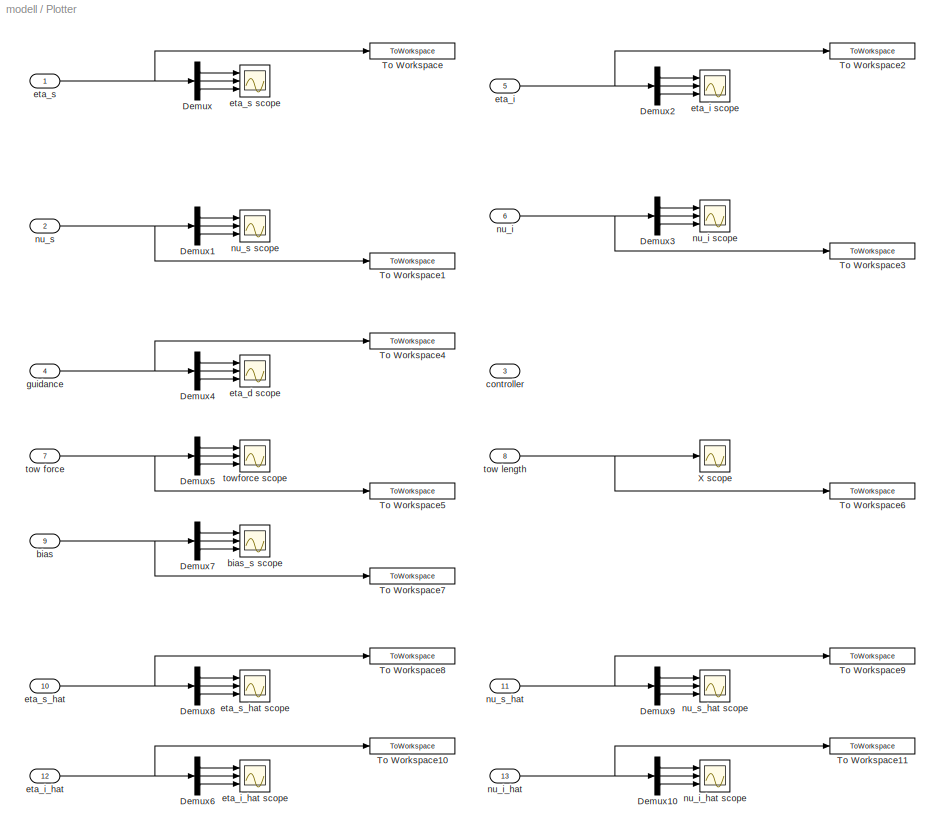
BLOCK [SubSystem] Plotter
  FunctionWithSeparateData = off
  MaskHideContents = off
  MinAlgLoopOccurrences = off
  Opaque = off
  Ports = [13]
  PropExecContextOutsideSubsystem = off
  RTWSystemCode = Auto
  RequestExecContextInheritance = off
BLOCK [Demux] Plotter/Demux
  DisplayOption = bar
  Outputs = 3
  Ports = [1, 3]
BLOCK [Demux] Plotter/Demux1
  DisplayOption = bar
  Outputs = 3
  Ports = [1, 3]
BLOCK [Demux] Plotter/Demux10
  DisplayOption = bar
  Outputs = 3
  Ports = [1, 3]
BLOCK [Demux] Plotter/Demux2
  DisplayOption = bar
  Outputs = 3
  Ports = [1, 3]
BLOCK [Demux] Plotter/Demux3
  DisplayOption = bar
  Outputs = 3
  Ports = [1, 3]
BLOCK [Demux] Plotter/Demux4
  DisplayOption = bar
  Outputs = 3
  Ports = [1, 3]
BLOCK [Demux] Plotter/Demux5
  DisplayOption = bar
  Outputs = 3
  Ports = [1, 3]
BLOCK [Demux] Plotter/Demux6
  DisplayOption = bar
  Outputs = 3
  Ports = [1, 3]
BLOCK [Demux] Plotter/Demux7
  DisplayOption = bar
  Outputs = 3
  Ports = [1, 3]
BLOCK [Demux] Plotter/Demux8
  DisplayOption = bar
  Outputs = 3
  Ports = [1, 3]
BLOCK [Demux] Plotter/Demux9
  DisplayOption = bar
  Outputs = 3
  Ports = [1, 3]
BLOCK [ToWorkspace] Plotter/To Workspace
  MaxDataPoints = inf
  SampleTime = -1
  SaveFormat = Structure With Time
  VariableName = simout_eta_s
BLOCK [ToWorkspace] Plotter/To Workspace1
  MaxDataPoints = inf
  SampleTime = -1
  SaveFormat = Structure
  VariableName = simout_nu_s
BLOCK [ToWorkspace] Plotter/To Workspace10
  MaxDataPoints = inf
  SampleTime = -1
  SaveFormat = Structure
  VariableName = simout_eta_i_hat
BLOCK [ToWorkspace] Plotter/To Workspace11
  MaxDataPoints = inf
  SampleTime = -1
  SaveFormat = Structure
  VariableName = simout_nu_i_hat
BLOCK [ToWorkspace] Plotter/To Workspace2
  MaxDataPoints = inf
  SampleTime = -1
  SaveFormat = Structure
  VariableName = simout_eta_i
BLOCK [ToWorkspace] Plotter/To Workspace3
  MaxDataPoints = inf
  SampleTime = -1
  SaveFormat = Structure
  VariableName = simout_nu_i
BLOCK [ToWorkspace] Plotter/To Workspace4
  MaxDataPoints = inf
  SampleTime = -1
  SaveFormat = Structure
  VariableName = simout_eta_d
BLOCK [ToWorkspace] Plotter/To Workspace5
  MaxDataPoints = inf
  SampleTime = -1
  SaveFormat = Structure
  VariableName = simout_towforce
BLOCK [ToWorkspace] Plotter/To Workspace6
  MaxDataPoints = inf
  SampleTime = -1
  SaveFormat = Structure
  VariableName = simout_X
BLOCK [ToWorkspace] Plotter/To Workspace7
  MaxDataPoints = inf
  SampleTime = -1
  SaveFormat = Structure
  VariableName = simout_bias_s
BLOCK [ToWorkspace] Plotter/To Workspace8
  MaxDataPoints = inf
  SampleTime = -1
  SaveFormat = Structure
  VariableName = simout_eta_s_hat
BLOCK [ToWorkspace] Plotter/To Workspace9
  MaxDataPoints = inf
  SampleTime = -1
  SaveFormat = Structure
  VariableName = simout_nu_s_hat
BLOCK [Scope] Plotter/X scope
  DataFormat = StructureWithTime
  Floating = off
  NumInputPorts = 1
  Ports = [1]
  SampleTime = 0
  SaveName = ScopeData6
  YMax = 30
  YMin = 10
BLOCK [Inport] Plotter/bias
  IconDisplay = Port number
  OutDataType = fixdt(1, 16)
  OutScaling = 2^0
  Port = 9
BLOCK [Scope] Plotter/bias_s scope
  DataFormat = StructureWithTime
  Floating = off
  NumInputPorts = 3
  Ports = [3]
  SampleTime = 0
  SaveName = ScopeData8
  YMax = 0.75~0.75~0.75
  YMin = -2.5~-2.5~-2.5
BLOCK [Inport] Plotter/controller
  IconDisplay = Port number
  OutDataType = fixdt(1, 16)
  OutScaling = 2^0
  Port = 3
BLOCK [Scope] Plotter/eta_d scope
  DataFormat = StructureWithTime
  Floating = off
  NumInputPorts = 3
  Ports = [3]
  SampleTime = 0
  SaveName = ScopeData4
  YMax = 5~5~5
  YMin = -5~-5~-5
BLOCK [Inport] Plotter/eta_i
  IconDisplay = Port number
  OutDataType = fixdt(1, 16)
  OutScaling = 2^0
  Port = 5
BLOCK [Scope] Plotter/eta_i scope
  DataFormat = StructureWithTime
  Floating = off
  NumInputPorts = 3
  Ports = [3]
  SampleTime = 0
  SaveName = ScopeData2
  YMax = 5~5~5
  YMin = -5~-5~-5
BLOCK [Inport] Plotter/eta_i_hat
  IconDisplay = Port number
  OutDataType = fixdt(1, 16)
  OutScaling = 2^0
  Port = 12
BLOCK [Scope] Plotter/eta_i_hat scope
  DataFormat = StructureWithTime
  Floating = off
  NumInputPorts = 3
  Ports = [3]
  SampleTime = 0
  SaveName = ScopeData14
  YMax = 9.45~0.001~0.0025
  YMin = 8.55~-0.0015~-0.00225
BLOCK [Inport] Plotter/eta_s
  IconDisplay = Port number
  OutDataType = fixdt(1, 16)
  OutScaling = 2^0
BLOCK [Scope] Plotter/eta_s scope
  DataFormat = StructureWithTime
  Floating = off
  NumInputPorts = 3
  Ports = [3]
  SampleTime = 0
  YMax = 9.45~0.001~0.0025
  YMin = 8.55~-0.0015~-0.00225
BLOCK [Inport] Plotter/eta_s_hat
  IconDisplay = Port number
  OutDataType = fixdt(1, 16)
  OutScaling = 2^0
  Port = 10
BLOCK [Scope] Plotter/eta_s_hat scope
  DataFormat = StructureWithTime
  Floating = off
  NumInputPorts = 3
  Ports = [3]
  SampleTime = 0
  SaveName = ScopeData11
  YMax = 9.45~0.001~0.0025
  YMin = 8.55~-0.0015~-0.00225
BLOCK [Inport] Plotter/guidance
  IconDisplay = Port number
  OutDataType = fixdt(1, 16)
  OutScaling = 2^0
  Port = 4
BLOCK [Inport] Plotter/nu_i
  IconDisplay = Port number
  OutDataType = fixdt(1, 16)
  OutScaling = 2^0
  Port = 6
BLOCK [Scope] Plotter/nu_i scope
  DataFormat = StructureWithTime
  Floating = off
  NumInputPorts = 3
  Ports = [3]
  SampleTime = 0
  SaveName = ScopeData3
  YMax = 5~5~5
  YMin = -5~-5~-5
BLOCK [Inport] Plotter/nu_i_hat
  IconDisplay = Port number
  OutDataType = fixdt(1, 16)
  OutScaling = 2^0
  Port = 13
BLOCK [Scope] Plotter/nu_i_hat scope
  DataFormat = StructureWithTime
  Floating = off
  NumInputPorts = 3
  Ports = [3]
  SampleTime = 0
  SaveName = ScopeData15
  YMax = 9.45~0.001~0.0025
  YMin = 8.55~-0.0015~-0.00225
BLOCK [Inport] Plotter/nu_s
  IconDisplay = Port number
  OutDataType = fixdt(1, 16)
  OutScaling = 2^0
  Port = 2
BLOCK [Scope] Plotter/nu_s scope
  DataFormat = StructureWithTime
  Floating = off
  NumInputPorts = 3
  Ports = [3]
  SampleTime = 0
  SaveName = ScopeData1
  YMax = 5~5~5
  YMin = -5~-5~-5
BLOCK [Inport] Plotter/nu_s_hat
  IconDisplay = Port number
  OutDataType = fixdt(1, 16)
  OutScaling = 2^0
  Port = 11
BLOCK [Scope] Plotter/nu_s_hat scope
  DataFormat = StructureWithTime
  Floating = off
  NumInputPorts = 3
  Ports = [3]
  SampleTime = 0
  SaveName = ScopeData12
  YMax = 9.45~0.001~0.0025
  YMin = 8.55~-0.0015~-0.00225
BLOCK [Inport] Plotter/tow force
  IconDisplay = Port number
  OutDataType = fixdt(1, 16)
  OutScaling = 2^0
  Port = 7
BLOCK [Inport] Plotter/tow length
  IconDisplay = Port number
  OutDataType = fixdt(1, 16)
  OutScaling = 2^0
  Port = 8
BLOCK [Scope] Plotter/towforce scope
  DataFormat = StructureWithTime
  Floating = off
  NumInputPorts = 3
  Ports = [3]
  SampleTime = 0
  SaveName = ScopeData5
  YMax = 27~-3.47e-021~1
  YMin = 9~-3.51e-021~-1
BLOCK [SignalViewerScope] Scope
  DataFormat = Array
  IOType = viewer
  MaxDataPoints = 7500
  NumInputPorts = 1
  Ports = []
  RefreshTime = 0.035000
  ShowDataMarkers = off
  ShowLegends = off
BLOCK [S-Function] SignalProbe
  Description = Use this block with SIT.
  EnableBusSupport = off
  FunctionName = SignalProbe
  MaskDescription = The LabVIEW Simulation Interface Toolkit uses the SignalProbe block to probe the signals in the model. The SignalProbe block must be on the top level of the model hierarchy. You can have only one SignalProbe block per model file. Do not rename the SignalProbe block. Do not change the name of another model block to SignalProbe.
  MaskIconFrame = on
  MaskIconOpaque = on
  MaskIconRotate = none
  MaskIconUnits = autoscale
  MaskPortRotate = default
  Parameters = 1
  Ports = []
  PreSaveFcn = NISIT_ModelVars;
BLOCK [SubSystem] Thruster Control
  FunctionWithSeparateData = off
  MaskHideContents = off
  MinAlgLoopOccurrences = off
  Opaque = off
  Ports = [2, 2]
  PropExecContextOutsideSubsystem = off
  RTWSystemCode = Auto
  RequestExecContextInheritance = off
BLOCK [Constant] Thruster Control/BT_power_limit
  OutDataType = fixdt(1, 16)
  OutScaling = 2^0
  Value = 0.5
BLOCK [Constant] Thruster Control/Ke^-1
  OutDataType = fixdt(1, 16)
  OutScaling = 2^0
  Value = inv(Ke)
BLOCK [Mux] Thruster Control/Mux1
  DisplayOption = bar
  Inputs = 3
  Ports = [3, 1]
BLOCK [Outport] Thruster Control/Out
  IconDisplay = Port number
  OutDataType = fixdt(1, 16)
  OutScaling = 2^0
BLOCK [Product] Thruster Control/Product
  InputSameDT = off
  Multiplication = Matrix(*)
  OutDataType = fixdt(1, 16)
  OutDataTypeMode = Inherit via internal rule
  OutDataTypeStr = Inherit: Inherit via internal rule
  OutScaling = 2^0
  Ports = [2, 1]
  SaturateOnIntegerOverflow = off
BLOCK [Product] Thruster Control/Product1
  InputSameDT = off
  Multiplication = Matrix(*)
  OutDataType = fixdt(1, 16)
  OutDataTypeMode = Inherit via internal rule
  OutDataTypeStr = Inherit: Inherit via internal rule
  OutScaling = 2^0
  Ports = [2, 1]
  SaturateOnIntegerOverflow = off
BLOCK [Saturate] Thruster Control/Saturation
  LowerLimit = -1.0
  OutDataType = fixdt(1, 16)
  OutScaling = 2^0
  UpperLimit = 1.0
BLOCK [Sum] Thruster Control/Sum
  IconShape = round
  InputSameDT = off
  Inputs = |+-
  OutDataType = fixdt(1, 16)
  OutDataTypeMode = Inherit via internal rule
  OutDataTypeStr = Inherit: Inherit via internal rule
  OutScaling = 2^0
  Ports = [2, 1]
  SaturateOnIntegerOverflow = off
BLOCK [Constant] Thruster Control/Te^+
  OutDataType = fixdt(1, 16)
  OutScaling = 2^0
  Value = pinv(Te)
BLOCK [Inport] Thruster Control/Towforce
  IconDisplay = Port number
  OutDataType = fixdt(1, 16)
  OutScaling = 2^0
  Port = 2
BLOCK [Constant] Thruster Control/VSP_speeds
  OutDataType = fixdt(1, 16)
  OutScaling = 2^0
  Value = 0.4
BLOCK [Inport] Thruster Control/tau
  IconDisplay = Port number
  OutDataType = fixdt(1, 16)
  OutScaling = 2^0
BLOCK [Outport] Thruster Control/tau_s_measured
  IconDisplay = Port number
  OutDataType = fixdt(1, 16)
  OutScaling = 2^0
  Port = 2
BLOCK [SubSystem] Towline
  FunctionWithSeparateData = off
  MaskHideContents = off
  MinAlgLoopOccurrences = off
  Opaque = off
  Ports = [2, 3]
  PropExecContextOutsideSubsystem = off
  RTWSystemCode = Auto
  RequestExecContextInheritance = off
BLOCK [Demux] Towline/Demux
  DisplayOption = bar
  Outputs = 3
  Ports = [1, 3]
BLOCK [Demux] Towline/Demux1
  DisplayOption = bar
  Outputs = 3
  Ports = [1, 3]
BLOCK [InitialCondition] Towline/IC
  Value = [0 0 0]'
BLOCK [Integrator] Towline/Integrator
  InitialConditionSource = external
  Ports = [2, 1]
BLOCK [Sum] Towline/Sum
  IconShape = round
  InputSameDT = off
  Inputs = +-
  OutDataType = fixdt(1, 16)
  OutDataTypeMode = Inherit via internal rule
  OutDataTypeStr = Inherit: Inherit via internal rule
  OutScaling = 2^0
  Ports = [2, 1]
  SaturateOnIntegerOverflow = off
BLOCK [Outport] Towline/T_out
  IconDisplay = Port number
  OutDataType = fixdt(1, 16)
  OutScaling = 2^0
BLOCK [SubSystem] Towline/Towline dynamics
  FunctionWithSeparateData = off
  MaskHideContents = off
  MinAlgLoopOccurrences = off
  Opaque = off
  Ports = [2, 2]
  PropExecContextOutsideSubsystem = off
  RTWSystemCode = Auto
  RequestExecContextInheritance = off
BLOCK [If] Towline/Towline dynamics/If
  ElseIfExpressions = u3 > u4
  IfExpression = u1 > u2
  NumInputs = 4
  Ports = [4, 3]
BLOCK [Constant] Towline/Towline dynamics/K_tow
  OutDataType = fixdt(1, 16)
  OutScaling = 2^0
  Value = [1 0 0; 0 1 0; 0 0 0]
BLOCK [Sum] Towline/Towline dynamics/Sum2
  IconShape = round
  InputSameDT = off
  Inputs = +++
  OutDataType = fixdt(1, 16)
  OutDataTypeMode = Inherit via internal rule
  OutDataTypeStr = Inherit: Inherit via internal rule
  OutScaling = 2^0
  Ports = [3, 1]
  SaturateOnIntegerOverflow = off
BLOCK [Outport] Towline/Towline dynamics/T
  IconDisplay = Port number
  OutDataType = fixdt(1, 16)
  OutScaling = 2^0
BLOCK [Constant] Towline/Towline dynamics/T_cr
  OutDataType = fixdt(1, 16)
  OutScaling = 2^0
  Value = 14000
BLOCK [Product] Towline/Towline dynamics/T_temp
  InputSameDT = off
  Multiplication = Matrix(*)
  OutDataType = fixdt(1, 16)
  OutDataTypeMode = Inherit via internal rule
  OutDataTypeStr = Inherit: Inherit via internal rule
  OutScaling = 2^0
  Ports = [2, 1]
  SaturateOnIntegerOverflow = off
BLOCK [Constant] Towline/Towline dynamics/T_zero
  OutDataType = fixdt(1, 16)
  OutScaling = 2^0
  Value = [0 0 0]'
BLOCK [Constant] Towline/Towline dynamics/Towline length
  OutDataType = fixdt(1, 16)
  OutScaling = 2^0
  Value = 0
BLOCK [Inport] Towline/Towline dynamics/X
  IconDisplay = Port number
  OutDataType = fixdt(1, 16)
  OutScaling = 2^0
  Port = 2
BLOCK [SubSystem] Towline/Towline dynamics/cartesian length
  FunctionWithSeparateData = off
  MaskHideContents = off
  MinAlgLoopOccurrences = off
  Opaque = off
  Ports = [1, 1]
  PropExecContextOutsideSubsystem = off
  RTWSystemCode = Auto
  RequestExecContextInheritance = off
BLOCK [Demux] Towline/Towline dynamics/cartesian length/Demux
  DisplayOption = bar
  Outputs = 3
  Ports = [1, 3]
BLOCK [Inport] Towline/Towline dynamics/cartesian length/In1
  IconDisplay = Port number
  OutDataType = fixdt(1, 16)
  OutScaling = 2^0
BLOCK [Outport] Towline/Towline dynamics/cartesian length/Out1
  IconDisplay = Port number
  OutDataType = fixdt(1, 16)
  OutScaling = 2^0
BLOCK [Sum] Towline/Towline dynamics/cartesian length/Sum
  IconShape = round
  InputSameDT = off
  OutDataType = fixdt(1, 16)
  OutDataTypeMode = Inherit via internal rule
  OutDataTypeStr = Inherit: Inherit via internal rule
  OutScaling = 2^0
  Ports = [2, 1]
  SaturateOnIntegerOverflow = off
BLOCK [Math] Towline/Towline dynamics/cartesian length/mf1
  Operator = square
  OutDataType = fixdt(1, 16)
  OutScaling = 2^0
  Ports = [1, 1]
BLOCK [Math] Towline/Towline dynamics/cartesian length/mf2
  Operator = square
  OutDataType = fixdt(1, 16)
  OutScaling = 2^0
  Ports = [1, 1]
BLOCK [Math] Towline/Towline dynamics/cartesian length/mf3
  Operator = sqrt
  OutDataType = fixdt(1, 16)
  OutScaling = 2^0
  Ports = [1, 1]
BLOCK [SubSystem] Towline/Towline dynamics/cartesian length1
  FunctionWithSeparateData = off
  MaskHideContents = off
  MinAlgLoopOccurrences = off
  Opaque = off
  Ports = [1, 1]
  PropExecContextOutsideSubsystem = off
  RTWSystemCode = Auto
  RequestExecContextInheritance = off
BLOCK [Demux] Towline/Towline dynamics/cartesian length1/Demux
  DisplayOption = bar
  Outputs = 3
  Ports = [1, 3]
BLOCK [Inport] Towline/Towline dynamics/cartesian length1/In1
  IconDisplay = Port number
  OutDataType = fixdt(1, 16)
  OutScaling = 2^0
BLOCK [Outport] Towline/Towline dynamics/cartesian length1/Out1
  IconDisplay = Port number
  OutDataType = fixdt(1, 16)
  OutScaling = 2^0
BLOCK [Sum] Towline/Towline dynamics/cartesian length1/Sum
  IconShape = round
  InputSameDT = off
  OutDataType = fixdt(1, 16)
  OutDataTypeMode = Inherit via internal rule
  OutDataTypeStr = Inherit: Inherit via internal rule
  OutScaling = 2^0
  Ports = [2, 1]
  SaturateOnIntegerOverflow = off
BLOCK [Math] Towline/Towline dynamics/cartesian length1/mf1
  Operator = square
  OutDataType = fixdt(1, 16)
  OutScaling = 2^0
  Ports = [1, 1]
BLOCK [Math] Towline/Towline dynamics/cartesian length1/mf2
  Operator = square
  OutDataType = fixdt(1, 16)
  OutScaling = 2^0
  Ports = [1, 1]
BLOCK [Math] Towline/Towline dynamics/cartesian length1/mf3
  Operator = sqrt
  OutDataType = fixdt(1, 16)
  OutScaling = 2^0
  Ports = [1, 1]
BLOCK [Outport] Towline/Towline dynamics/l
  IconDisplay = Port number
  OutDataType = fixdt(1, 16)
  OutScaling = 2^0
  Port = 2
BLOCK [Inport] Towline/Towline dynamics/pos_diff_length
  IconDisplay = Port number
  OutDataType = fixdt(1, 16)
  OutScaling = 2^0
BLOCK [SubSystem] Towline/Towline dynamics/rupture
  FunctionWithSeparateData = off
  MaskHideContents = off
  MinAlgLoopOccurrences = off
  Opaque = off
  Ports = [1, 1, 0, 0, 0, 0, 0, 1]
  PropExecContextOutsideSubsystem = off
  RTWSystemCode = Auto
  RequestExecContextInheritance = off
  TreatAsAtomicUnit = on
BLOCK [ActionPort] Towline/Towline dynamics/rupture/Action Port
  ActionType = elseif
BLOCK [Inport] Towline/Towline dynamics/rupture/In1
  IconDisplay = Port number
  OutDataType = fixdt(1, 16)
  OutScaling = 2^0
BLOCK [Outport] Towline/Towline dynamics/rupture/Out1
  IconDisplay = Port number
  OutDataType = fixdt(1, 16)
  OutScaling = 2^0
BLOCK [SubSystem] Towline/Towline dynamics/slack
  FunctionWithSeparateData = off
  MaskHideContents = off
  MinAlgLoopOccurrences = off
  Opaque = off
  Ports = [1, 1, 0, 0, 0, 0, 0, 1]
  PropExecContextOutsideSubsystem = off
  RTWSystemCode = Auto
  RequestExecContextInheritance = off
  TreatAsAtomicUnit = on
BLOCK [ActionPort] Towline/Towline dynamics/slack/Action Port
  ActionType = then
BLOCK [Inport] Towline/Towline dynamics/slack/In1
  IconDisplay = Port number
  OutDataType = fixdt(1, 16)
  OutScaling = 2^0
BLOCK [Outport] Towline/Towline dynamics/slack/Out1
  IconDisplay = Port number
  OutDataType = fixdt(1, 16)
  OutScaling = 2^0
BLOCK [SubSystem] Towline/Towline dynamics/towing
  FunctionWithSeparateData = off
  MaskHideContents = off
  MinAlgLoopOccurrences = off
  Opaque = off
  Ports = [1, 1, 0, 0, 0, 0, 0, 1]
  PropExecContextOutsideSubsystem = off
  RTWSystemCode = Auto
  RequestExecContextInheritance = off
  TreatAsAtomicUnit = on
BLOCK [ActionPort] Towline/Towline dynamics/towing/Action Port
  ActionType = else
BLOCK [Inport] Towline/Towline dynamics/towing/In1
  IconDisplay = Port number
  OutDataType = fixdt(1, 16)
  OutScaling = 2^0
BLOCK [Outport] Towline/Towline dynamics/towing/Out1
  IconDisplay = Port number
  OutDataType = fixdt(1, 16)
  OutScaling = 2^0
BLOCK [Scope] Towline/X scope
  DataFormat = StructureWithTime
  Floating = off
  NumInputPorts = 3
  Ports = [3]
  SampleTime = 0
  SaveName = ScopeData13
  YMax = 350~35000~7500
  YMin = 0~0~0
BLOCK [Outport] Towline/X_out
  IconDisplay = Port number
  OutDataType = fixdt(1, 16)
  OutScaling = 2^0
  Port = 2
BLOCK [SubSystem] Towline/cartesian length
  FunctionWithSeparateData = off
  MaskHideContents = off
  MinAlgLoopOccurrences = off
  Opaque = off
  Ports = [1, 1]
  PropExecContextOutsideSubsystem = off
  RTWSystemCode = Auto
  RequestExecContextInheritance = off
BLOCK [Demux] Towline/cartesian length/Demux
  DisplayOption = bar
  Outputs = 3
  Ports = [1, 3]
BLOCK [Inport] Towline/cartesian length/In1
  IconDisplay = Port number
  OutDataType = fixdt(1, 16)
  OutScaling = 2^0
BLOCK [Outport] Towline/cartesian length/Out1
  IconDisplay = Port number
  OutDataType = fixdt(1, 16)
  OutScaling = 2^0
BLOCK [Sum] Towline/cartesian length/Sum
  IconShape = round
  InputSameDT = off
  OutDataType = fixdt(1, 16)
  OutDataTypeMode = Inherit via internal rule
  OutDataTypeStr = Inherit: Inherit via internal rule
  OutScaling = 2^0
  Ports = [2, 1]
  SaturateOnIntegerOverflow = off
BLOCK [Math] Towline/cartesian length/mf1
  Operator = square
  OutDataType = fixdt(1, 16)
  OutScaling = 2^0
  Ports = [1, 1]
BLOCK [Math] Towline/cartesian length/mf2
  Operator = square
  OutDataType = fixdt(1, 16)
  OutScaling = 2^0
  Ports = [1, 1]
BLOCK [Math] Towline/cartesian length/mf3
  Operator = sqrt
  OutDataType = fixdt(1, 16)
  OutScaling = 2^0
  Ports = [1, 1]
BLOCK [Outport] Towline/l_out
  IconDisplay = Port number
  OutDataType = fixdt(1, 16)
  OutScaling = 2^0
  Port = 3
BLOCK [Scope] Towline/length+T
  DataFormat = StructureWithTime
  Floating = off
  NumInputPorts = 4
  Ports = [4]
  SampleTime = 0
  SaveName = ScopeData7
  YMax = 350~35000~7500~0.2
  YMin = 0~0~0~-0.55
BLOCK [Inport] Towline/nu_i_in
  IconDisplay = Port number
  OutDataType = fixdt(1, 16)
  OutScaling = 2^0
  Port = 2
BLOCK [Inport] Towline/nu_s_in
  IconDisplay = Port number
  OutDataType = fixdt(1, 16)
  OutScaling = 2^0
BLOCK [Constant] Towline/pos_diff
  OutDataType = fixdt(1, 16)
  OutScaling = 2^0
  Value = pos_diff
BLOCK [SubSystem] bias
  FunctionWithSeparateData = off
  MaskHideContents = off
  MinAlgLoopOccurrences = off
  Opaque = off
  Ports = [1, 2]
  PropExecContextOutsideSubsystem = off
  RTWSystemCode = Auto
  RequestExecContextInheritance = off
BLOCK [Reference] bias/Band-Limited\nWhite Noise  REF=simulink/Sources/Band-Limited\nWhite Noise
  Cov = [0.01 0.01 0.001]
  FunctionWithSeparateData = off
  Ports = [0, 1]
  RTWMemSecDataConstants = Inherit from model
  RTWMemSecDataInternal = Inherit from model
  RTWMemSecDataParameters = Inherit from model
  RTWMemSecFuncExecute = Inherit from model
  RTWMemSecFuncInitTerm = Inherit from model
  ShowPortLabels = FromPortIcon
  SourceBlock = simulink/Sources/Band-Limited\nWhite Noise
  SourceType = Band-Limited White Noise.
  SystemSampleTime = -1
  Ts = 0.1
  VectorParams1D = on
  seed = [23341]
BLOCK [Demux] bias/Demux
  DisplayOption = bar
  Outputs = 3
  Ports = [1, 3]
BLOCK [Gain] bias/E_b_i
  Gain = E_b_i
  Multiplication = Matrix(K*u)
  OutDataType = fixdt(1, 16)
  OutDataTypeMode = Inherit via internal rule
  OutDataTypeStr = Inherit: Inherit via internal rule
  OutScaling = 2^0
  ParamDataTypeStr = Inherit: Inherit via internal rule
  ParameterDataType = fixdt(1, 16)
  ParameterDataTypeMode = Inherit via internal rule
  ParameterScaling = 2^0
  SaturateOnIntegerOverflow = off
BLOCK [Gain] bias/E_b_s
  Gain = E_b_s
  Multiplication = Matrix(K*u)
  OutDataType = fixdt(1, 16)
  OutDataTypeMode = Inherit via internal rule
  OutDataTypeStr = Inherit: Inherit via internal rule
  OutScaling = 2^0
  ParamDataTypeStr = Inherit: Inherit via internal rule
  ParameterDataType = fixdt(1, 16)
  ParameterDataTypeMode = Inherit via internal rule
  ParameterScaling = 2^0
  SaturateOnIntegerOverflow = off
BLOCK [Integrator] bias/Integrator
  Ports = [1, 1]
BLOCK [Integrator] bias/Integrator1
  Ports = [1, 1]
BLOCK [Reference] bias/Manual Switch  REF=simulink/Signal\nRouting/Manual Switch
  FunctionWithSeparateData = off
  Ports = [2, 1]
  RTWMemSecDataConstants = Inherit from model
  RTWMemSecDataInternal = Inherit from model
  RTWMemSecDataParameters = Inherit from model
  RTWMemSecFuncExecute = Inherit from model
  RTWMemSecFuncInitTerm = Inherit from model
  ShowPortLabels = FromPortIcon
  SourceBlock = simulink/Signal\nRouting/Manual Switch
  SourceType = Manual Switch
  SystemSampleTime = -1
  action = 0
  sw = 0
  varsize = off
BLOCK [Reference] bias/Manual Switch1  REF=simulink/Signal\nRouting/Manual Switch
  FunctionWithSeparateData = off
  Ports = [2, 1]
  RTWMemSecDataConstants = Inherit from model
  RTWMemSecDataInternal = Inherit from model
  RTWMemSecDataParameters = Inherit from model
  RTWMemSecFuncExecute = Inherit from model
  RTWMemSecFuncInitTerm = Inherit from model
  ShowPortLabels = FromPortIcon
  SourceBlock = simulink/Signal\nRouting/Manual Switch
  SourceType = Manual Switch
  SystemSampleTime = -1
  action = 0
  sw = 1
  varsize = off
BLOCK [Sum] bias/Sum
  IconShape = round
  InputSameDT = off
  Inputs = |++
  OutDataType = fixdt(1, 16)
  OutDataTypeMode = Inherit via internal rule
  OutDataTypeStr = Inherit: Inherit via internal rule
  OutScaling = 2^0
  Ports = [2, 1]
  SaturateOnIntegerOverflow = off
BLOCK [Sum] bias/Sum1
  IconShape = round
  InputSameDT = off
  Inputs = ++|
  OutDataType = fixdt(1, 16)
  OutDataTypeMode = Inherit via internal rule
  OutDataTypeStr = Inherit: Inherit via internal rule
  OutScaling = 2^0
  Ports = [2, 1]
  SaturateOnIntegerOverflow = off
BLOCK [Gain] bias/T_i_inv
  Gain = inv(T_i)
  Multiplication = Matrix(K*u)
  OutDataType = fixdt(1, 16)
  OutDataTypeMode = Inherit via internal rule
  OutDataTypeStr = Inherit: Inherit via internal rule
  OutScaling = 2^0
  ParamDataTypeStr = Inherit: Inherit via internal rule
  ParameterDataType = fixdt(1, 16)
  ParameterDataTypeMode = Inherit via internal rule
  ParameterScaling = 2^0
  SaturateOnIntegerOverflow = off
BLOCK [Gain] bias/T_s_inv
  Gain = inv(T_s)
  Multiplication = Matrix(K*u)
  OutDataType = fixdt(1, 16)
  OutDataTypeMode = Inherit via internal rule
  OutDataTypeStr = Inherit: Inherit via internal rule
  OutScaling = 2^0
  ParamDataTypeStr = Inherit: Inherit via internal rule
  ParameterDataType = fixdt(1, 16)
  ParameterDataTypeMode = Inherit via internal rule
  ParameterScaling = 2^0
  SaturateOnIntegerOverflow = off
BLOCK [Reference] bias/Transposed rotation\n matrix in yaw  REF=marine_gnc/Models/ Kinematics/Transposed rotation\n matrix in yaw  (lib defined in mdl_10d96c221ba8, mdl_45f1105420c6)
  FunctionWithSeparateData = off
  Ports = [2, 1]
  RTWMemSecDataConstants = Inherit from model
  RTWMemSecDataInternal = Inherit from model
  RTWMemSecDataParameters = Inherit from model
  RTWMemSecFuncExecute = Inherit from model
  RTWMemSecFuncInitTerm = Inherit from model
  ShowPortLabels = FromPortIcon
  SourceBlock = marine_gnc/Models/ Kinematics/Transposed rotation\n matrix in yaw
  SystemSampleTime = -1
BLOCK [Reference] bias/Transposed rotation\n matrix in yaw1  REF=marine_gnc/Models/ Kinematics/Transposed rotation\n matrix in yaw  (lib defined in mdl_10d96c221ba8, mdl_45f1105420c6)
  FunctionWithSeparateData = off
  Ports = [2, 1]
  RTWMemSecDataConstants = Inherit from model
  RTWMemSecDataInternal = Inherit from model
  RTWMemSecDataParameters = Inherit from model
  RTWMemSecFuncExecute = Inherit from model
  RTWMemSecFuncInitTerm = Inherit from model
  ShowPortLabels = FromPortIcon
  SourceBlock = marine_gnc/Models/ Kinematics/Transposed rotation\n matrix in yaw
  SystemSampleTime = -1
BLOCK [Outport] bias/bias iceberg
  IconDisplay = Port number
  OutDataType = fixdt(1, 16)
  OutScaling = 2^0
  Port = 2
BLOCK [Outport] bias/bias ship
  IconDisplay = Port number
  OutDataType = fixdt(1, 16)
  OutScaling = 2^0
BLOCK [Inport] bias/eta
  IconDisplay = Port number
  OutDataType = fixdt(1, 16)
  OutScaling = 2^0
BLOCK [Constant] bias/zero
  OutDataType = fixdt(1, 16)
  OutScaling = 2^0
  Value = 0
BLOCK [Reference] ctc  REF=simulink/Logic and Bit\nOperations/Compare\nTo Constant
  FunctionWithSeparateData = off
  LogicOutDataTypeMode = uint8
  Ports = [1, 1]
  RTWMemSecDataConstants = Inherit from model
  RTWMemSecDataInternal = Inherit from model
  RTWMemSecDataParameters = Inherit from model
  RTWMemSecFuncExecute = Inherit from model
  RTWMemSecFuncInitTerm = Inherit from model
  ShowPortLabels = FromPortIcon
  SourceBlock = simulink/Logic and Bit\nOperations/Compare\nTo Constant
  SourceType = Compare To Constant
  SystemSampleTime = -1
  ZeroCross = on
  const = 2
  relop = ==
ANNOTATION DP controller: eta_d
ANNOTATION HIL model: Ship dynamics
ANNOTATION HIL model: Thrust allocation
ANNOTATION Iceberg: etadot
ANNOTATION Iceberg: nu
ANNOTATION Iceberg: nu_dot
LINE Constant:1 -> HIL model:8
LINE DP controller/DP controller/Demux1:1 -> DP controller/DP controller/Reg_e_N_hil:1
LINE DP controller/DP controller/Demux1:2 -> DP controller/DP controller/Reg_e_E_hil:1
LINE DP controller/DP controller/Demux1:3 -> DP controller/DP controller/Reg_e_Psi_hil:1
LINE DP controller/DP controller/Demux:1 -> DP controller/DP controller/Mux:1
LINE DP controller/DP controller/Demux:2 -> DP controller/DP controller/Mux:2
LINE DP controller/DP controller/Demux:3 -> DP controller/DP controller/[-inf inf] to [-pi pi]:1
LINE DP controller/DP controller/Integrator:1 -> DP controller/DP controller/Ki:1
LINE DP controller/DP controller/Kd:1 -> DP controller/DP controller/Product2:1
LINE DP controller/DP controller/Kd_scale:1 -> DP controller/DP controller/Product2:2
LINE DP controller/DP controller/Ki:1 -> DP controller/DP controller/Product1:1
LINE DP controller/DP controller/Ki_scale:1 -> DP controller/DP controller/Product1:2
LINE DP controller/DP controller/Kp:1 -> DP controller/DP controller/Product:2
LINE DP controller/DP controller/Kp_scale:1 -> DP controller/DP controller/Product:1
LINE DP controller/DP controller/Mux1:1 -> DP controller/DP controller/Demux:1
LINE DP controller/DP controller/Mux:1 -> DP controller/DP controller/Transposed rotation\n matrix in yaw1:2
LINE DP controller/DP controller/Product1:1 -> DP controller/DP controller/Sum3:2
LINE DP controller/DP controller/Product2:1 -> DP controller/DP controller/Sum1:2
LINE DP controller/DP controller/Product:1 -> DP controller/DP controller/Sum3:1
LINE DP controller/DP controller/Reg_e_E_hil:1 -> DP controller/DP controller/Mux1:2
LINE DP controller/DP controller/Reg_e_N_hil:1 -> DP controller/DP controller/Mux1:1
LINE DP controller/DP controller/Reg_e_Psi_hil:1 -> DP controller/DP controller/Mux1:3
LINE DP controller/DP controller/Sum1:1 -> DP controller/DP controller/tau:1
LINE DP controller/DP controller/Sum2:1 -> DP controller/DP controller/Demux1:1
LINE DP controller/DP controller/Sum3:1 -> DP controller/DP controller/Sum1:1
NET DP controller/DP controller/Transposed rotation\n matrix in yaw1:1 -> DP controller/DP controller/Integrator:1, DP controller/DP controller/Kp:1
LINE DP controller/DP controller/[-inf inf] to [-pi pi]1:1 -> DP controller/DP controller/Transposed rotation\n matrix in yaw1:1
LINE DP controller/DP controller/[-inf inf] to [-pi pi]:1 -> DP controller/DP controller/Mux:3
NET DP controller/DP controller/eta:1 -> DP controller/DP controller/Sum2:2, DP controller/DP controller/yaw angle:1
LINE DP controller/DP controller/eta_ref:1 -> DP controller/DP controller/Sum2:1
LINE DP controller/DP controller/nu:1 -> DP controller/DP controller/Kd:1
LINE DP controller/DP controller/yaw angle:1 -> DP controller/DP controller/[-inf inf] to [-pi pi]1:1
NET DP controller/DP controller:1 -> DP controller/plot:1, DP controller/tau:1
LINE DP controller/eta:1 -> DP controller/DP controller:2
LINE DP controller/guidance:1 -> DP controller/DP controller:1
LINE DP controller/nu:1 -> DP controller/DP controller:3
LINE DP controller:1 -> Thruster Control:1
LINE DP controller:2 -> Plotter:3
LINE Demux1:1 -> HIL model:1
LINE Demux1:2 -> HIL model:2
LINE Demux1:3 -> HIL model:3
LINE Demux1:4 -> HIL model:4
LINE Demux1:5 -> HIL model:5
LINE Demux1:6 -> HIL model:6
LINE Demux1:7 -> HIL model:7
LINE HIL model/BT_power:1 -> HIL model/Terminator5:1
NET HIL model/BT_power_limit:1 -> HIL model/Rate Limiter\nDynamic:1, HIL model/neg:1
LINE HIL model/CSE1 eta:1 -> HIL model/Integrator1:3
LINE HIL model/Cartesian to\nPolar Port:1 -> HIL model/Terminator1:1
LINE HIL model/Cartesian to\nPolar Port:2 -> HIL model/VSP_angle_deg_port:1
LINE HIL model/Cartesian to\nPolar Stbd:1 -> HIL model/Terminator3:1
LINE HIL model/Cartesian to\nPolar Stbd:2 -> HIL model/VSP_angle_deg_stbd:1
LINE HIL model/Constant1:1 -> HIL model/Product:2
LINE HIL model/Constant:1 -> HIL model/Product:1
LINE HIL model/D:1 -> HIL model/Sum3:2
LINE HIL model/Demux1:1 -> HIL model/nu_surge_hil:1
LINE HIL model/Demux1:2 -> HIL model/nu_sway_hil:1
LINE HIL model/Demux1:3 -> HIL model/nu_yaw_hil:1
LINE HIL model/Demux2:1 -> HIL model/VIS_HIL_N:1
LINE HIL model/Demux2:2 -> HIL model/VIS_HIL_E:1
LINE HIL model/Demux2:3 -> HIL model/VIS_HIL_PIS:1
LINE HIL model/Demux:1 -> HIL model/tau_surge_hil:1
LINE HIL model/Demux:2 -> HIL model/tau_sway_hil:1
LINE HIL model/Demux:3 -> HIL model/tau_yaw_hil:1
NET HIL model/Integrator1:1 -> HIL model/Demux2:1, HIL model/eta:1, HIL model/psi:1
NET HIL model/Integrator:1 -> HIL model/D:1, HIL model/Demux1:1, HIL model/Rotation matrix\nin yaw 1:2
LINE HIL model/Mux1:1 -> HIL model/Sum3:1
LINE HIL model/Mux2:1 -> HIL model/nu:1
LINE HIL model/Mux:1 -> HIL model/Product:3
LINE HIL model/Product:1 -> HIL model/Demux:1
LINE HIL model/Rate Limiter\nDynamic:1 -> HIL model/u5_hil:1
LINE HIL model/Rotation matrix\nin yaw 1:1 -> HIL model/Integrator1:1
LINE HIL model/Sum3:1 -> HIL model/inv(M):1
NET HIL model/U1:1 -> HIL model/Cartesian to\nPolar Port:2, HIL model/u1_hil:1
NET HIL model/U2:1 -> HIL model/Cartesian to\nPolar Port:1, HIL model/u2_hil:1
NET HIL model/U3:1 -> HIL model/Cartesian to\nPolar Stbd:2, HIL model/u3_hil:1
NET HIL model/U4:1 -> HIL model/Cartesian to\nPolar Stbd:1, HIL model/u4_hil:1
NET HIL model/U5:1 -> HIL model/BT_power:1, HIL model/Rate Limiter\nDynamic:2
LINE HIL model/VIS_HIL_E:1 -> HIL model/Terminator6:1
LINE HIL model/VIS_HIL_N:1 -> HIL model/Terminator:1
LINE HIL model/VIS_HIL_PIS:1 -> HIL model/Terminator7:1
LINE HIL model/VSP_angle_deg_port:1 -> HIL model/Terminator2:1
LINE HIL model/VSP_angle_deg_stbd:1 -> HIL model/Terminator4:1
LINE HIL model/initial_nu_hil:1 -> HIL model/Integrator:3
LINE HIL model/inv(M):1 -> HIL model/Integrator:1
LINE HIL model/neg:1 -> HIL model/Rate Limiter\nDynamic:3
LINE HIL model/nu_surge_hil:1 -> HIL model/Mux2:1
LINE HIL model/nu_sway_hil:1 -> HIL model/Mux2:2
LINE HIL model/nu_yaw_hil:1 -> HIL model/Mux2:3
LINE HIL model/psi:1 -> HIL model/Rotation matrix\nin yaw 1:1
NET HIL model/reset_eta_hil:1 -> HIL model/Integrator1:2, HIL model/Integrator:2
LINE HIL model/tau_surge_hil:1 -> HIL model/Mux1:1
LINE HIL model/tau_sway_hil:1 -> HIL model/Mux1:2
LINE HIL model/tau_yaw_hil:1 -> HIL model/Mux1:3
LINE HIL model/u1_hil:1 -> HIL model/Mux:1
LINE HIL model/u2_hil:1 -> HIL model/Mux:2
LINE HIL model/u3_hil:1 -> HIL model/Mux:3
LINE HIL model/u4_hil:1 -> HIL model/Mux:4
LINE HIL model/u5_hil:1 -> HIL model/Mux:5
NET HIL model:1 -> DP controller:1, Observer (ship):1, Plotter:1, bias:1
NET HIL model:2 -> DP controller:2, Plotter:2, Towline:1
LINE Iceberg/D:1 -> Iceberg/Sum3:2
NET Iceberg/Integrator1:1 -> Iceberg/eta:1, Iceberg/psi:1
NET Iceberg/Integrator2:1 -> Iceberg/D:1, Iceberg/Rotation matrix\nin yaw 1:2, Iceberg/nu:1
LINE Iceberg/Rotation matrix\nin yaw 1:1 -> Iceberg/Integrator1:1
LINE Iceberg/Sum3:1 -> Iceberg/inv(M):1
LINE Iceberg/bias:1 -> Iceberg/Sum3:3
LINE Iceberg/initial position:1 -> Iceberg/Integrator1:2
LINE Iceberg/inv(M):1 -> Iceberg/Integrator2:1
LINE Iceberg/psi:1 -> Iceberg/Rotation matrix\nin yaw 1:1
LINE Iceberg/saturation/Demux:1 -> Iceberg/saturation/Saturation:1
LINE Iceberg/saturation/Demux:2 -> Iceberg/saturation/Saturation1:1
LINE Iceberg/saturation/Demux:3 -> Iceberg/saturation/Saturation2:1
LINE Iceberg/saturation/Mux1:1 -> Iceberg/saturation/sat_tau:1
LINE Iceberg/saturation/Saturation1:1 -> Iceberg/saturation/Mux1:2
LINE Iceberg/saturation/Saturation2:1 -> Iceberg/saturation/Mux1:3
LINE Iceberg/saturation/Saturation:1 -> Iceberg/saturation/Mux1:1
LINE Iceberg/saturation/tau:1 -> Iceberg/saturation/Demux:1
LINE Iceberg/saturation:1 -> Iceberg/Sum3:1
LINE Iceberg/tau:1 -> Iceberg/saturation:1
NET Iceberg:1 -> Observer (iceberg):1, Plotter:5
NET Iceberg:2 -> Plotter:6, Towline:2
LINE Joystick Control/BT_power_limit:1 -> Joystick Control/Mux1:3
LINE Joystick Control/Demux1:1 -> Joystick Control/joystick_gain_sway:1
LINE Joystick Control/Demux1:2 -> Joystick Control/joystick_gain_surge:1
LINE Joystick Control/Demux1:5 -> Joystick Control/Sum:1
LINE Joystick Control/Demux1:6 -> Joystick Control/Sum:2
LINE Joystick Control/Ke^-1:1 -> Joystick Control/Product:1
LINE Joystick Control/Mux1:1 -> Joystick Control/Out1:1
LINE Joystick Control/Mux:1 -> Joystick Control/Product1:2
NET Joystick Control/PS3:1 -> Joystick Control/Demux1:1, Joystick Control/debug joystick control IN:1
LINE Joystick Control/Product1:1 -> Joystick Control/Saturation:1
LINE Joystick Control/Product:1 -> Joystick Control/Product1:1
NET Joystick Control/Saturation:1 -> Joystick Control/Mux1:1, Joystick Control/debug joystick control OUT:1
LINE Joystick Control/Sum:1 -> Joystick Control/joystick_gain_yaw:1
LINE Joystick Control/Te^+:1 -> Joystick Control/Product:2
LINE Joystick Control/VSP_speeds:1 -> Joystick Control/Mux1:2
LINE Joystick Control/joystick_gain_surge:1 -> Joystick Control/Mux:1
LINE Joystick Control/joystick_gain_sway:1 -> Joystick Control/Mux:2
LINE Joystick Control/joystick_gain_yaw:1 -> Joystick Control/Mux:3
LINE Joystick Control:1 -> Multiport\nSwitch:3
LINE LabView Out/BT_saturation:1 -> LabView Out/BT_saturation_out:1
LINE LabView Out/Demux:1 -> LabView Out/Transfer Fcn:1
LINE LabView Out/Demux:2 -> LabView Out/Transfer Fcn1:1
LINE LabView Out/Demux:3 -> LabView Out/Transfer Fcn2:1
LINE LabView Out/Mux1:1 -> LabView Out/eta_d:1
LINE LabView Out/Mux:1 -> LabView Out/Demux:1
LINE LabView Out/Transfer Fcn1:1 -> LabView Out/Mux1:2
LINE LabView Out/Transfer Fcn2:1 -> LabView Out/Mux1:3
LINE LabView Out/Transfer Fcn:1 -> LabView Out/Mux1:1
LINE LabView Out/VSP_speeds:1 -> LabView Out/VSP_speeds_out:1
LINE LabView Out/eta_d_E:1 -> LabView Out/Mux:2
LINE LabView Out/eta_d_N:1 -> LabView Out/Mux:1
LINE LabView Out/eta_d_Psi:1 -> LabView Out/Mux:3
LINE LabView Out:1 -> Manual Thruster Control:2
LINE LabView Out:2 -> Manual Thruster Control:3
NET LabView Out:3 -> DP controller:3, Plotter:4
NET MODE:1 -> Multiport\nSwitch:1, ctc:1
LINE Manual Thruster Control/BT_saturation:1 -> Manual Thruster Control/Mux:6
LINE Manual Thruster Control/Demux1:1 -> Manual Thruster Control/U2:1
LINE Manual Thruster Control/Demux1:2 -> Manual Thruster Control/U1:1
LINE Manual Thruster Control/Demux1:3 -> Manual Thruster Control/U4:1
LINE Manual Thruster Control/Demux1:4 -> Manual Thruster Control/U3:1
LINE Manual Thruster Control/Demux1:5 -> Manual Thruster Control/Sum:1
LINE Manual Thruster Control/Demux1:6 -> Manual Thruster Control/Sum:2
LINE Manual Thruster Control/Mux:1 -> Manual Thruster Control/Out1:1
LINE Manual Thruster Control/PS3:1 -> Manual Thruster Control/Demux1:1
LINE Manual Thruster Control/Sum:1 -> Manual Thruster Control/U5:1
LINE Manual Thruster Control/U1:1 -> Manual Thruster Control/Mux:1
LINE Manual Thruster Control/U2:1 -> Manual Thruster Control/Mux:2
LINE Manual Thruster Control/U3:1 -> Manual Thruster Control/Mux:3
LINE Manual Thruster Control/U4:1 -> Manual Thruster Control/Mux:4
LINE Manual Thruster Control/U5:1 -> Manual Thruster Control/Mux:5
LINE Manual Thruster Control/VSP_speeds:1 -> Manual Thruster Control/Mux:7
LINE Manual Thruster Control:1 -> Multiport\nSwitch:2
LINE Multiport\nSwitch:1 -> Demux1:1
NET Mux:1 -> Joystick Control:1, Manual Thruster Control:1
LINE Observer (iceberg)/A_w:1 -> Observer (iceberg)/Sum5:2
LINE Observer (iceberg)/C_w:1 -> Observer (iceberg)/Sum6:1
LINE Observer (iceberg)/D:1 -> Observer (iceberg)/Sum4:3
NET Observer (iceberg)/Demux:3 -> Observer (iceberg)/R_T1:1, Observer (iceberg)/R_T2:1, Observer (iceberg)/Rotation matrix\nin yaw :1
LINE Observer (iceberg)/K_1:1 -> Observer (iceberg)/Sum5:1
LINE Observer (iceberg)/K_2:1 -> Observer (iceberg)/Sum3:1
LINE Observer (iceberg)/K_3:1 -> Observer (iceberg)/Sum2:1
LINE Observer (iceberg)/K_4:1 -> Observer (iceberg)/R_T1:2
LINE Observer (iceberg)/M_inv:1 -> Observer (iceberg)/nu_hat:1
LINE Observer (iceberg)/R_T1:1 -> Observer (iceberg)/Sum1:1
LINE Observer (iceberg)/R_T2:1 -> Observer (iceberg)/Sum4:1
LINE Observer (iceberg)/Rotation matrix\nin yaw :1 -> Observer (iceberg)/Sum3:2
LINE Observer (iceberg)/Sum1:1 -> Observer (iceberg)/Sum4:2
LINE Observer (iceberg)/Sum2:1 -> Observer (iceberg)/bias_hat_integrator:1
LINE Observer (iceberg)/Sum3:1 -> Observer (iceberg)/eta_hat:1
LINE Observer (iceberg)/Sum4:1 -> Observer (iceberg)/M_inv:1
LINE Observer (iceberg)/Sum5:1 -> Observer (iceberg)/wave hat:1
NET Observer (iceberg)/Sum6:1 -> Observer (iceberg)/Sum:2, Observer (iceberg)/eta_i_hat:1
NET Observer (iceberg)/Sum:1 -> Observer (iceberg)/K_1:1, Observer (iceberg)/K_2:1, Observer (iceberg)/K_3:1, Observer (iceberg)/K_4:1
LINE Observer (iceberg)/T_inv:1 -> Observer (iceberg)/Sum2:2
NET Observer (iceberg)/bias_hat_integrator:1 -> Observer (iceberg)/R_T2:2, Observer (iceberg)/T_inv:1, Observer (iceberg)/bias_i_hat:1
LINE Observer (iceberg)/eta_hat:1 -> Observer (iceberg)/Sum6:2
NET Observer (iceberg)/nu_hat:1 -> Observer (iceberg)/D:1, Observer (iceberg)/Rotation matrix\nin yaw :2, Observer (iceberg)/nu_i_hat:1
LINE Observer (iceberg)/tau_i_measured:1 -> Observer (iceberg)/Sum1:2
NET Observer (iceberg)/wave hat:1 -> Observer (iceberg)/A_w:1, Observer (iceberg)/C_w:1
NET Observer (iceberg)/y:1 -> Observer (iceberg)/Demux:1, Observer (iceberg)/Sum:1
LINE Observer (iceberg):1 -> Plotter:12
LINE Observer (iceberg):2 -> Plotter:13
LINE Observer (ship)/A_w:1 -> Observer (ship)/Sum5:2
LINE Observer (ship)/C_w:1 -> Observer (ship)/Sum6:1
LINE Observer (ship)/D:1 -> Observer (ship)/Sum4:3
NET Observer (ship)/Demux:3 -> Observer (ship)/R_T1:1, Observer (ship)/R_T2:1, Observer (ship)/Rotation matrix\nin yaw :1
LINE Observer (ship)/K_1:1 -> Observer (ship)/Sum5:1
LINE Observer (ship)/K_2:1 -> Observer (ship)/Sum3:1
LINE Observer (ship)/K_3:1 -> Observer (ship)/Sum2:1
LINE Observer (ship)/K_4:1 -> Observer (ship)/R_T1:2
LINE Observer (ship)/M_inv:1 -> Observer (ship)/nu_hat:1
LINE Observer (ship)/R_T1:1 -> Observer (ship)/Sum1:1
LINE Observer (ship)/R_T2:1 -> Observer (ship)/Sum4:1
LINE Observer (ship)/Rotation matrix\nin yaw :1 -> Observer (ship)/Sum3:2
LINE Observer (ship)/Sum1:1 -> Observer (ship)/Sum4:2
LINE Observer (ship)/Sum2:1 -> Observer (ship)/bias_hat_integrator:1
LINE Observer (ship)/Sum3:1 -> Observer (ship)/eta_hat:1
LINE Observer (ship)/Sum4:1 -> Observer (ship)/M_inv:1
LINE Observer (ship)/Sum5:1 -> Observer (ship)/wave hat:1
NET Observer (ship)/Sum6:1 -> Observer (ship)/Sum:2, Observer (ship)/eta_s_hat:1
NET Observer (ship)/Sum:1 -> Observer (ship)/K_1:1, Observer (ship)/K_2:1, Observer (ship)/K_3:1, Observer (ship)/K_4:1
LINE Observer (ship)/T_inv:1 -> Observer (ship)/Sum2:2
NET Observer (ship)/bias_hat_integrator:1 -> Observer (ship)/R_T2:2, Observer (ship)/T_inv:1, Observer (ship)/bias_s_hat:1
LINE Observer (ship)/eta_hat:1 -> Observer (ship)/Sum6:2
NET Observer (ship)/nu_hat:1 -> Observer (ship)/D:1, Observer (ship)/Rotation matrix\nin yaw :2, Observer (ship)/nu_s_hat:1
LINE Observer (ship)/tau_s_measured:1 -> Observer (ship)/Sum1:2
NET Observer (ship)/wave hat:1 -> Observer (ship)/A_w:1, Observer (ship)/C_w:1
NET Observer (ship)/y:1 -> Observer (ship)/Demux:1, Observer (ship)/Sum:1
LINE Observer (ship):1 -> Plotter:10
LINE Observer (ship):2 -> Plotter:11
LINE PS3 Sixaxis/Constant1:1 -> PS3 Sixaxis/Sum4:2
LINE PS3 Sixaxis/Constant:1 -> PS3 Sixaxis/Sum3:2
LINE PS3 Sixaxis/Gain1:1 -> PS3 Sixaxis/threshold block1:1
LINE PS3 Sixaxis/Gain2:1 -> PS3 Sixaxis/threshold block2:1
LINE PS3 Sixaxis/Gain3:1 -> PS3 Sixaxis/threshold block3:1
LINE PS3 Sixaxis/Gain:1 -> PS3 Sixaxis/threshold block:1
LINE PS3 Sixaxis/PS3_L2:1 -> PS3 Sixaxis/Sum3:1
NET PS3 Sixaxis/PS3_L_JS_X:1 -> PS3 Sixaxis/Gain:1, PS3 Sixaxis/debug:1, PS3 Sixaxis/threshold block:2
NET PS3 Sixaxis/PS3_L_JS_Y:1 -> PS3 Sixaxis/Gain1:1, PS3 Sixaxis/threshold block1:2
LINE PS3 Sixaxis/PS3_R2:1 -> PS3 Sixaxis/Sum4:1
NET PS3 Sixaxis/PS3_R_JS_X:1 -> PS3 Sixaxis/Gain2:1, PS3 Sixaxis/threshold block2:2
NET PS3 Sixaxis/PS3_R_JS_Y:1 -> PS3 Sixaxis/Gain3:1, PS3 Sixaxis/threshold block3:2
LINE PS3 Sixaxis/Sum3:1 -> PS3 Sixaxis/g1:1
LINE PS3 Sixaxis/Sum4:1 -> PS3 Sixaxis/g2:1
LINE PS3 Sixaxis/g1:1 -> PS3 Sixaxis/PS3_L2_out:1
LINE PS3 Sixaxis/g2:1 -> PS3 Sixaxis/PS3_R2_out:1
LINE PS3 Sixaxis/limit_L_JS_X:1 -> PS3 Sixaxis/threshold block:3
LINE PS3 Sixaxis/limit_L_JS_Y:1 -> PS3 Sixaxis/threshold block1:3
LINE PS3 Sixaxis/limit_R_JS_X:1 -> PS3 Sixaxis/threshold block2:3
LINE PS3 Sixaxis/limit_R_JS_Y:1 -> PS3 Sixaxis/threshold block3:3
LINE PS3 Sixaxis/threshold block/Abs:1 -> PS3 Sixaxis/threshold block/If:1
LINE PS3 Sixaxis/threshold block/Constant2:1 -> PS3 Sixaxis/threshold block/if:1
LINE PS3 Sixaxis/threshold block/If:1 -> PS3 Sixaxis/threshold block/if:ifaction
LINE PS3 Sixaxis/threshold block/If:2 -> PS3 Sixaxis/threshold block/else:ifaction
LINE PS3 Sixaxis/threshold block/In1:1 -> PS3 Sixaxis/threshold block/Abs:1
LINE PS3 Sixaxis/threshold block/Sum:1 -> PS3 Sixaxis/threshold block/Out1:1
LINE PS3 Sixaxis/threshold block/else/In1:1 -> PS3 Sixaxis/threshold block/else/Out1:1
LINE PS3 Sixaxis/threshold block/else:1 -> PS3 Sixaxis/threshold block/Sum:2
LINE PS3 Sixaxis/threshold block/if/In1:1 -> PS3 Sixaxis/threshold block/if/Out1:1
LINE PS3 Sixaxis/threshold block/if:1 -> PS3 Sixaxis/threshold block/Sum:1
LINE PS3 Sixaxis/threshold block/limit:1 -> PS3 Sixaxis/threshold block/If:2
LINE PS3 Sixaxis/threshold block/with gain:1 -> PS3 Sixaxis/threshold block/else:1
LINE PS3 Sixaxis/threshold block1/Abs:1 -> PS3 Sixaxis/threshold block1/If:1
LINE PS3 Sixaxis/threshold block1/Constant2:1 -> PS3 Sixaxis/threshold block1/if:1
LINE PS3 Sixaxis/threshold block1/If:1 -> PS3 Sixaxis/threshold block1/if:ifaction
LINE PS3 Sixaxis/threshold block1/If:2 -> PS3 Sixaxis/threshold block1/else:ifaction
LINE PS3 Sixaxis/threshold block1/In1:1 -> PS3 Sixaxis/threshold block1/Abs:1
LINE PS3 Sixaxis/threshold block1/Sum:1 -> PS3 Sixaxis/threshold block1/Out1:1
LINE PS3 Sixaxis/threshold block1/else/In1:1 -> PS3 Sixaxis/threshold block1/else/Out1:1
LINE PS3 Sixaxis/threshold block1/else:1 -> PS3 Sixaxis/threshold block1/Sum:2
LINE PS3 Sixaxis/threshold block1/if/In1:1 -> PS3 Sixaxis/threshold block1/if/Out1:1
LINE PS3 Sixaxis/threshold block1/if:1 -> PS3 Sixaxis/threshold block1/Sum:1
LINE PS3 Sixaxis/threshold block1/limit:1 -> PS3 Sixaxis/threshold block1/If:2
LINE PS3 Sixaxis/threshold block1/with gain:1 -> PS3 Sixaxis/threshold block1/else:1
NET PS3 Sixaxis/threshold block1:1 -> PS3 Sixaxis/PS3_L_JS_Y_out:1, PS3 Sixaxis/debug1:2
LINE PS3 Sixaxis/threshold block2/Abs:1 -> PS3 Sixaxis/threshold block2/If:1
LINE PS3 Sixaxis/threshold block2/Constant2:1 -> PS3 Sixaxis/threshold block2/if:1
LINE PS3 Sixaxis/threshold block2/If:1 -> PS3 Sixaxis/threshold block2/if:ifaction
LINE PS3 Sixaxis/threshold block2/If:2 -> PS3 Sixaxis/threshold block2/else:ifaction
LINE PS3 Sixaxis/threshold block2/In1:1 -> PS3 Sixaxis/threshold block2/Abs:1
LINE PS3 Sixaxis/threshold block2/Sum:1 -> PS3 Sixaxis/threshold block2/Out1:1
LINE PS3 Sixaxis/threshold block2/else/In1:1 -> PS3 Sixaxis/threshold block2/else/Out1:1
LINE PS3 Sixaxis/threshold block2/else:1 -> PS3 Sixaxis/threshold block2/Sum:2
LINE PS3 Sixaxis/threshold block2/if/In1:1 -> PS3 Sixaxis/threshold block2/if/Out1:1
LINE PS3 Sixaxis/threshold block2/if:1 -> PS3 Sixaxis/threshold block2/Sum:1
LINE PS3 Sixaxis/threshold block2/limit:1 -> PS3 Sixaxis/threshold block2/If:2
LINE PS3 Sixaxis/threshold block2/with gain:1 -> PS3 Sixaxis/threshold block2/else:1
NET PS3 Sixaxis/threshold block2:1 -> PS3 Sixaxis/PS3_R_JS_X_out:1, PS3 Sixaxis/debug1:3
LINE PS3 Sixaxis/threshold block3/Abs:1 -> PS3 Sixaxis/threshold block3/If:1
LINE PS3 Sixaxis/threshold block3/Constant2:1 -> PS3 Sixaxis/threshold block3/if:1
LINE PS3 Sixaxis/threshold block3/If:1 -> PS3 Sixaxis/threshold block3/if:ifaction
LINE PS3 Sixaxis/threshold block3/If:2 -> PS3 Sixaxis/threshold block3/else:ifaction
LINE PS3 Sixaxis/threshold block3/In1:1 -> PS3 Sixaxis/threshold block3/Abs:1
LINE PS3 Sixaxis/threshold block3/Sum:1 -> PS3 Sixaxis/threshold block3/Out1:1
LINE PS3 Sixaxis/threshold block3/else/In1:1 -> PS3 Sixaxis/threshold block3/else/Out1:1
LINE PS3 Sixaxis/threshold block3/else:1 -> PS3 Sixaxis/threshold block3/Sum:2
LINE PS3 Sixaxis/threshold block3/if/In1:1 -> PS3 Sixaxis/threshold block3/if/Out1:1
LINE PS3 Sixaxis/threshold block3/if:1 -> PS3 Sixaxis/threshold block3/Sum:1
LINE PS3 Sixaxis/threshold block3/limit:1 -> PS3 Sixaxis/threshold block3/If:2
LINE PS3 Sixaxis/threshold block3/with gain:1 -> PS3 Sixaxis/threshold block3/else:1
NET PS3 Sixaxis/threshold block3:1 -> PS3 Sixaxis/PS3_R_JS_Y_out:1, PS3 Sixaxis/debug1:4
NET PS3 Sixaxis/threshold block:1 -> PS3 Sixaxis/PS3_L_JS_X_out:1, PS3 Sixaxis/debug1:1
LINE PS3 Sixaxis:1 -> Mux:1
LINE PS3 Sixaxis:2 -> Mux:2
LINE PS3 Sixaxis:3 -> Mux:3
LINE PS3 Sixaxis:4 -> Mux:4
LINE PS3 Sixaxis:5 -> Mux:5
LINE PS3 Sixaxis:6 -> Mux:6
LINE Plotter/Demux10:1 -> Plotter/nu_i_hat scope:1
LINE Plotter/Demux10:2 -> Plotter/nu_i_hat scope:2
LINE Plotter/Demux10:3 -> Plotter/nu_i_hat scope:3
LINE Plotter/Demux1:1 -> Plotter/nu_s scope:1
LINE Plotter/Demux1:2 -> Plotter/nu_s scope:2
LINE Plotter/Demux1:3 -> Plotter/nu_s scope:3
LINE Plotter/Demux2:1 -> Plotter/eta_i scope:1
LINE Plotter/Demux2:2 -> Plotter/eta_i scope:2
LINE Plotter/Demux2:3 -> Plotter/eta_i scope:3
LINE Plotter/Demux3:1 -> Plotter/nu_i scope:1
LINE Plotter/Demux3:2 -> Plotter/nu_i scope:2
LINE Plotter/Demux3:3 -> Plotter/nu_i scope:3
LINE Plotter/Demux4:1 -> Plotter/eta_d scope:1
LINE Plotter/Demux4:2 -> Plotter/eta_d scope:2
LINE Plotter/Demux4:3 -> Plotter/eta_d scope:3
LINE Plotter/Demux5:1 -> Plotter/towforce scope:1
LINE Plotter/Demux5:2 -> Plotter/towforce scope:2
LINE Plotter/Demux5:3 -> Plotter/towforce scope:3
LINE Plotter/Demux6:1 -> Plotter/eta_i_hat scope:1
LINE Plotter/Demux6:2 -> Plotter/eta_i_hat scope:2
LINE Plotter/Demux6:3 -> Plotter/eta_i_hat scope:3
LINE Plotter/Demux7:1 -> Plotter/bias_s scope:1
LINE Plotter/Demux7:2 -> Plotter/bias_s scope:2
LINE Plotter/Demux7:3 -> Plotter/bias_s scope:3
LINE Plotter/Demux8:1 -> Plotter/eta_s_hat scope:1
LINE Plotter/Demux8:2 -> Plotter/eta_s_hat scope:2
LINE Plotter/Demux8:3 -> Plotter/eta_s_hat scope:3
LINE Plotter/Demux9:1 -> Plotter/nu_s_hat scope:1
LINE Plotter/Demux9:2 -> Plotter/nu_s_hat scope:2
LINE Plotter/Demux9:3 -> Plotter/nu_s_hat scope:3
LINE Plotter/Demux:1 -> Plotter/eta_s scope:1
LINE Plotter/Demux:2 -> Plotter/eta_s scope:2
LINE Plotter/Demux:3 -> Plotter/eta_s scope:3
NET Plotter/bias:1 -> Plotter/Demux7:1, Plotter/To Workspace7:1
NET Plotter/eta_i:1 -> Plotter/Demux2:1, Plotter/To Workspace2:1
NET Plotter/eta_i_hat:1 -> Plotter/Demux6:1, Plotter/To Workspace10:1
NET Plotter/eta_s:1 -> Plotter/Demux:1, Plotter/To Workspace:1
NET Plotter/eta_s_hat:1 -> Plotter/Demux8:1, Plotter/To Workspace8:1
NET Plotter/guidance:1 -> Plotter/Demux4:1, Plotter/To Workspace4:1
NET Plotter/nu_i:1 -> Plotter/Demux3:1, Plotter/To Workspace3:1
NET Plotter/nu_i_hat:1 -> Plotter/Demux10:1, Plotter/To Workspace11:1
NET Plotter/nu_s:1 -> Plotter/Demux1:1, Plotter/To Workspace1:1
NET Plotter/nu_s_hat:1 -> Plotter/Demux9:1, Plotter/To Workspace9:1
NET Plotter/tow force:1 -> Plotter/Demux5:1, Plotter/To Workspace5:1
NET Plotter/tow length:1 -> Plotter/To Workspace6:1, Plotter/X scope:1
LINE Thruster Control/BT_power_limit:1 -> Thruster Control/Mux1:3
LINE Thruster Control/Ke^-1:1 -> Thruster Control/Product:1
LINE Thruster Control/Mux1:1 -> Thruster Control/Out:1
LINE Thruster Control/Product1:1 -> Thruster Control/Saturation:1
LINE Thruster Control/Product:1 -> Thruster Control/Product1:1
LINE Thruster Control/Saturation:1 -> Thruster Control/Mux1:1
NET Thruster Control/Sum:1 -> Thruster Control/Product1:2, Thruster Control/tau_s_measured:1
LINE Thruster Control/Te^+:1 -> Thruster Control/Product:2
LINE Thruster Control/Towforce:1 -> Thruster Control/Sum:2
LINE Thruster Control/VSP_speeds:1 -> Thruster Control/Mux1:2
LINE Thruster Control/tau:1 -> Thruster Control/Sum:1
LINE Thruster Control:1 -> Multiport\nSwitch:4
LINE Thruster Control:2 -> Observer (ship):2
LINE Towline/Demux1:1 -> Towline/X scope:1
LINE Towline/Demux1:2 -> Towline/X scope:2
LINE Towline/Demux1:3 -> Towline/X scope:3
LINE Towline/Demux:1 -> Towline/length+T:2
LINE Towline/Demux:2 -> Towline/length+T:3
LINE Towline/Demux:3 -> Towline/length+T:4
LINE Towline/IC:1 -> Towline/T_out:1
NET Towline/Integrator:1 -> Towline/Demux1:1, Towline/Towline dynamics:2, Towline/X_out:1
LINE Towline/Sum:1 -> Towline/Integrator:1
LINE Towline/Towline dynamics/If:1 -> Towline/Towline dynamics/slack:ifaction
LINE Towline/Towline dynamics/If:2 -> Towline/Towline dynamics/rupture:ifaction
LINE Towline/Towline dynamics/If:3 -> Towline/Towline dynamics/towing:ifaction
LINE Towline/Towline dynamics/K_tow:1 -> Towline/Towline dynamics/T_temp:1
LINE Towline/Towline dynamics/Sum2:1 -> Towline/Towline dynamics/T:1
LINE Towline/Towline dynamics/T_cr:1 -> Towline/Towline dynamics/If:4
NET Towline/Towline dynamics/T_temp:1 -> Towline/Towline dynamics/cartesian length1:1, Towline/Towline dynamics/towing:1
NET Towline/Towline dynamics/T_zero:1 -> Towline/Towline dynamics/rupture:1, Towline/Towline dynamics/slack:1
LINE Towline/Towline dynamics/Towline length:1 -> Towline/Towline dynamics/If:1
NET Towline/Towline dynamics/X:1 -> Towline/Towline dynamics/T_temp:2, Towline/Towline dynamics/cartesian length:1
LINE Towline/Towline dynamics/cartesian length/Demux:1 -> Towline/Towline dynamics/cartesian length/mf1:1
LINE Towline/Towline dynamics/cartesian length/Demux:2 -> Towline/Towline dynamics/cartesian length/mf2:1
LINE Towline/Towline dynamics/cartesian length/In1:1 -> Towline/Towline dynamics/cartesian length/Demux:1
LINE Towline/Towline dynamics/cartesian length/Sum:1 -> Towline/Towline dynamics/cartesian length/mf3:1
LINE Towline/Towline dynamics/cartesian length/mf1:1 -> Towline/Towline dynamics/cartesian length/Sum:1
LINE Towline/Towline dynamics/cartesian length/mf2:1 -> Towline/Towline dynamics/cartesian length/Sum:2
LINE Towline/Towline dynamics/cartesian length/mf3:1 -> Towline/Towline dynamics/cartesian length/Out1:1
LINE Towline/Towline dynamics/cartesian length1/Demux:1 -> Towline/Towline dynamics/cartesian length1/mf1:1
LINE Towline/Towline dynamics/cartesian length1/Demux:2 -> Towline/Towline dynamics/cartesian length1/mf2:1
LINE Towline/Towline dynamics/cartesian length1/In1:1 -> Towline/Towline dynamics/cartesian length1/Demux:1
LINE Towline/Towline dynamics/cartesian length1/Sum:1 -> Towline/Towline dynamics/cartesian length1/mf3:1
LINE Towline/Towline dynamics/cartesian length1/mf1:1 -> Towline/Towline dynamics/cartesian length1/Sum:1
LINE Towline/Towline dynamics/cartesian length1/mf2:1 -> Towline/Towline dynamics/cartesian length1/Sum:2
LINE Towline/Towline dynamics/cartesian length1/mf3:1 -> Towline/Towline dynamics/cartesian length1/Out1:1
LINE Towline/Towline dynamics/cartesian length1:1 -> Towline/Towline dynamics/If:3
NET Towline/Towline dynamics/cartesian length:1 -> Towline/Towline dynamics/If:2, Towline/Towline dynamics/l:1
LINE Towline/Towline dynamics/rupture/In1:1 -> Towline/Towline dynamics/rupture/Out1:1
LINE Towline/Towline dynamics/rupture:1 -> Towline/Towline dynamics/Sum2:2
LINE Towline/Towline dynamics/slack/In1:1 -> Towline/Towline dynamics/slack/Out1:1
LINE Towline/Towline dynamics/slack:1 -> Towline/Towline dynamics/Sum2:1
LINE Towline/Towline dynamics/towing/In1:1 -> Towline/Towline dynamics/towing/Out1:1
LINE Towline/Towline dynamics/towing:1 -> Towline/Towline dynamics/Sum2:3
NET Towline/Towline dynamics:1 -> Towline/Demux:1, Towline/IC:1
NET Towline/Towline dynamics:2 -> Towline/l_out:1, Towline/length+T:1
LINE Towline/cartesian length/Demux:1 -> Towline/cartesian length/mf1:1
LINE Towline/cartesian length/Demux:2 -> Towline/cartesian length/mf2:1
LINE Towline/cartesian length/In1:1 -> Towline/cartesian length/Demux:1
LINE Towline/cartesian length/Sum:1 -> Towline/cartesian length/mf3:1
LINE Towline/cartesian length/mf1:1 -> Towline/cartesian length/Sum:1
LINE Towline/cartesian length/mf2:1 -> Towline/cartesian length/Sum:2
LINE Towline/cartesian length/mf3:1 -> Towline/cartesian length/Out1:1
LINE Towline/cartesian length:1 -> Towline/Towline dynamics:1
LINE Towline/nu_i_in:1 -> Towline/Sum:2
LINE Towline/nu_s_in:1 -> Towline/Sum:1
NET Towline/pos_diff:1 -> Towline/Integrator:2, Towline/cartesian length:1
NET Towline:1 -> Iceberg:1, Observer (iceberg):2, Plotter:7, Thruster Control:2
LINE Towline:3 -> Plotter:8
NET bias/Band-Limited\nWhite Noise:1 -> bias/E_b_i:1, bias/E_b_s:1
NET bias/Demux:3 -> bias/Transposed rotation\n matrix in yaw1:1, bias/Transposed rotation\n matrix in yaw:1
LINE bias/E_b_i:1 -> bias/Sum1:1
LINE bias/E_b_s:1 -> bias/Sum:2
NET bias/Integrator1:1 -> bias/T_i_inv:1, bias/Transposed rotation\n matrix in yaw1:2
NET bias/Integrator:1 -> bias/T_s_inv:1, bias/Transposed rotation\n matrix in yaw:2
LINE bias/Manual Switch1:1 -> bias/bias iceberg:1
LINE bias/Manual Switch:1 -> bias/bias ship:1
LINE bias/Sum1:1 -> bias/Integrator1:1
LINE bias/Sum:1 -> bias/Integrator:1
LINE bias/T_i_inv:1 -> bias/Sum1:2
LINE bias/T_s_inv:1 -> bias/Sum:1
LINE bias/Transposed rotation\n matrix in yaw1:1 -> bias/Manual Switch1:2
LINE bias/Transposed rotation\n matrix in yaw:1 -> bias/Manual Switch:1
LINE bias/eta:1 -> bias/Demux:1
NET bias/zero:1 -> bias/Manual Switch1:1, bias/Manual Switch:2
LINE bias:1 -> Plotter:9
LINE bias:2 -> Iceberg:2
LINE ctc:1 -> DP controller:enable
note: NET lines group one-source signal fan-out (src -> all destinations, sorted); 1:1 wires keep LINE
